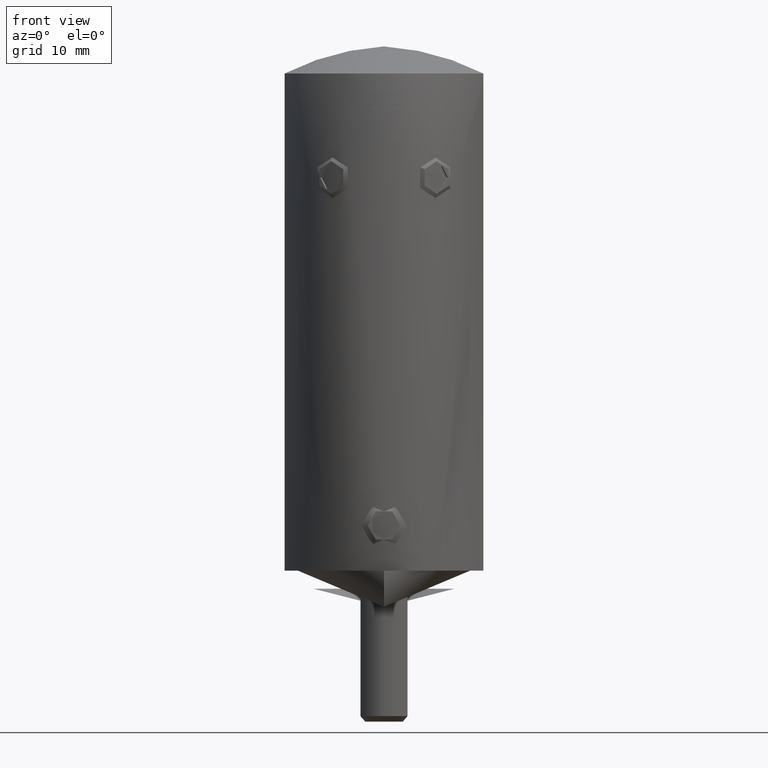
[diagram: clean part render]
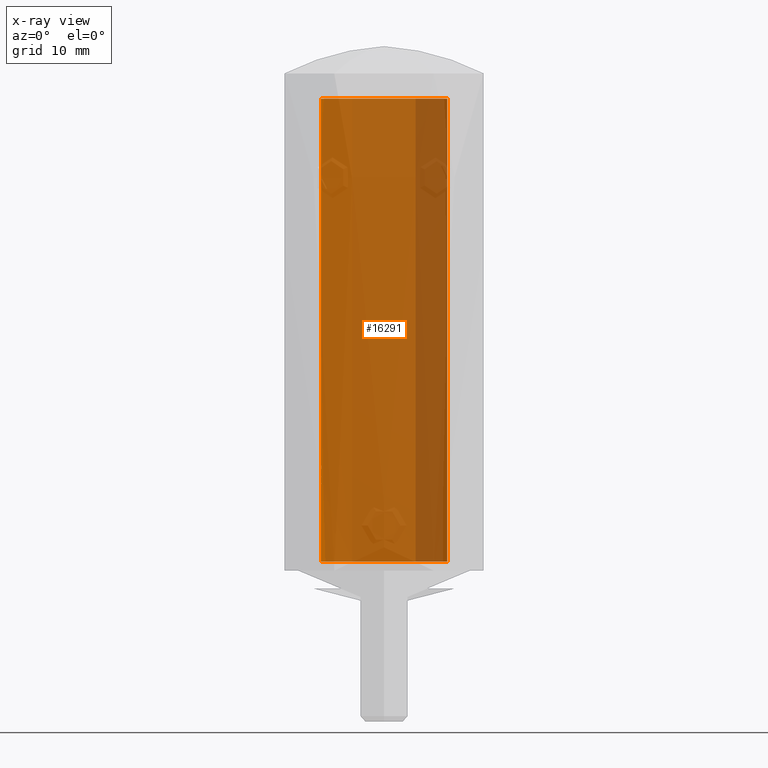
[diagram: x-ray — body ghosted, one internal face saturated and labeled with its STEP entity id]
A machine part, front view, then the same camera in x-ray: the body is ghosted and one INTERNAL B-rep face — a face not visible from any outside direction — is saturated and labeled: STEP entity #16291.
In plain terms, the highlighted cylindrical surface (partial cylindrical patch) has radius 7 mm, axis along (0, 0, 1).
Its self-contained STEP definition (entity closure, byte-faithful):
#86 = EDGE_CURVE ( 'NONE', #2688, #7362, #11579, .T. ) ;
#117 = EDGE_CURVE ( 'NONE', #8470, #6115, #10831, .T. ) ;
#182 = EDGE_CURVE ( 'NONE', #7376, #13845, #14457, .T. ) ;
#239 = AXIS2_PLACEMENT_3D ( 'NONE', #5784, #3709, #15758 ) ;
#241 = CARTESIAN_POINT ( 'NONE',  ( -6.993923164209693510, 0.2916140825320512886, 10.21983173076923457 ) ) ;
#248 = CARTESIAN_POINT ( 'NONE',  ( -6.992269128914475829, 0.3312836199741324705, 10.21871385728420023 ) ) ;
#284 = CARTESIAN_POINT ( 'NONE',  ( -6.994605575281114263, 0.2747596153846154077, 11.08481570512820902 ) ) ;
#324 = DIRECTION ( 'NONE',  ( -0.000000000000000000, -0.000000000000000000, 1.000000000000000000 ) ) ;
#360 = EDGE_CURVE ( 'NONE', #2921, #10218, #13961, .T. ) ;
#370 = CIRCLE ( 'NONE', #20636, 6.999999999999995559 ) ;
#379 = ORIENTED_EDGE ( 'NONE', *, *, #4284, .T. ) ;
#468 = CARTESIAN_POINT ( 'NONE',  ( -6.994605575281114263, 0.2747596153846154632, 10.56582532051282541 ) ) ;
#472 = CARTESIAN_POINT ( 'NONE',  ( -6.990270887320201076, 0.3707298341137504893, 8.431776057682716541 ) ) ;
#562 = CARTESIAN_POINT ( 'NONE',  ( 6.609966749525824525, 2.313107632880131881, 48.37054425271382740 ) ) ;
#566 = ORIENTED_EDGE ( 'NONE', *, *, #3780, .T. ) ;
#590 = CARTESIAN_POINT ( 'NONE',  ( -6.998563910360761753, 0.1432152236574844029, 11.04421904568840418 ) ) ;
#604 = B_SPLINE_CURVE_WITH_KNOTS ( 'NONE', 3,
 ( #21180, #4046, #16102, #18130, #6155, #3596 ),
 .UNSPECIFIED., .F., .F.,
 ( 4, 2, 4 ),
 ( 0.000000000000000000, 0.0001352648156522844405, 0.0002705296313045688810 ),
 .UNSPECIFIED. ) ;
#619 = AXIS2_PLACEMENT_3D ( 'NONE', #4058, #2101, #7446 ) ;
#644 = EDGE_CURVE ( 'NONE', #20290, #13957, #21049, .T. ) ;
#654 = CARTESIAN_POINT ( 'NONE',  ( 6.333276096579824710, 3.003985707210385936, 47.63300103334585600 ) ) ;
#808 = VERTEX_POINT ( 'NONE', #17090 ) ;
#892 = VECTOR ( 'NONE', #13893, 1000.000000000000000 ) ;
#897 = VERTEX_POINT ( 'NONE', #20576 ) ;
#961 = ORIENTED_EDGE ( 'NONE', *, *, #13887, .T. ) ;
#966 = VERTEX_POINT ( 'NONE', #15560 ) ;
#1039 = CARTESIAN_POINT ( 'NONE',  ( -6.983575710892729660, 0.4792392828525641191, 9.375200320512817598 ) ) ;
#1041 = CARTESIAN_POINT ( 'NONE',  ( -6.975185519710941584, 0.5888877354552816135, 10.90625314056816819 ) ) ;
#1082 = LINE ( 'NONE', #21160, #9695 ) ;
#1084 = CARTESIAN_POINT ( 'NONE',  ( 0.000000000000000000, 0.000000000000000000, 11.57327724358974486 ) ) ;
#1088 = B_SPLINE_CURVE_WITH_KNOTS ( 'NONE', 3,
 ( #16149, #21071, #7400, #7256, #12590, #9132, #17499, #2293 ),
 .UNSPECIFIED., .F., .F.,
 ( 4, 2, 2, 4 ),
 ( 0.000000000000000000, 0.0001335179647753670070, 0.0002002769471630503749, 0.0002670359295507337429 ),
 .UNSPECIFIED. ) ;
#1091 = CARTESIAN_POINT ( 'NONE',  ( -6.882762550482690145, 1.301561327987564409, 32.21941108549696509 ) ) ;
#1096 = CARTESIAN_POINT ( 'NONE',  ( -6.976773795614326978, 0.5697734561777609841, 9.275984636557687679 ) ) ;
#1106 = EDGE_CURVE ( 'NONE', #3520, #18708, #604, .T. ) ;
#1168 = CARTESIAN_POINT ( 'NONE',  ( -4.513954613622008338, 5.354015904551115312, 34.13626347998637556 ) ) ;
#1170 = LINE ( 'NONE', #14360, #17323 ) ;
#1185 = ORIENTED_EDGE ( 'NONE', *, *, #8744, .T. ) ;
#1201 = AXIS2_PLACEMENT_3D ( 'NONE', #11415, #2552, #4585 ) ;
#1212 = CARTESIAN_POINT ( 'NONE',  ( -6.984330604154168398, 0.4681089743589743613, 11.25781249999999822 ) ) ;
#1239 = CARTESIAN_POINT ( 'NONE',  ( -6.099067382008819926, 3.443960770532199511, 32.74202961873561435 ) ) ;
#1240 = EDGE_CURVE ( 'NONE', #12290, #14135, #11130, .T. ) ;
#1248 = CARTESIAN_POINT ( 'NONE',  ( -6.989310702890290550, 0.3866987179487179627, 11.25781249999999822 ) ) ;
#1273 = EDGE_CURVE ( 'NONE', #4027, #5399, #3821, .T. ) ;
#1280 = CARTESIAN_POINT ( 'NONE',  ( -6.999726386330049621, 0.06189685584760248188, 10.82991391746099552 ) ) ;
#1303 = CARTESIAN_POINT ( 'NONE',  ( 0.000000000000000000, 0.000000000000000000, 8.581450320512814756 ) ) ;
#1305 = VERTEX_POINT ( 'NONE', #16699 ) ;
#1308 = CARTESIAN_POINT ( 'NONE',  ( -6.768356280952174231, 1.804393380317886431, 32.29221277188669603 ) ) ;
#1315 = VERTEX_POINT ( 'NONE', #11414 ) ;
#1323 = CARTESIAN_POINT ( 'NONE',  ( -6.999999999999995559, 0.000000000000000000, 11.64451121794871824 ) ) ;
#1337 = EDGE_CURVE ( 'NONE', #20705, #15530, #18234, .T. ) ;
#1414 = CARTESIAN_POINT ( 'NONE',  ( -6.999999999999995559, 0.000000000000000000, 11.57327724358974486 ) ) ;
#1487 = B_SPLINE_CURVE_WITH_KNOTS ( 'NONE', 3,
 ( #20178, #16820, #21889, #11536, #1091, #1308, #14780, #13041, #8019, #13330, #1239, #15004, #21677, #15076, #4768, #1168, #18543, #21962, #14929, #2892, #11683, #13118, #2737, #4479, #18254, #7944, #19959, #6294, #18329, #20038, #21747, #20529, #10222, #6789, #3102, #16894, #8380, #15292, #15143, #18835, #4978, #4907, #8585, #1515, #4838, #6574, #20391, #17033, #18609, #8523 ),
 .UNSPECIFIED., .F., .F.,
 ( 4, 2, 2, 2, 2, 2, 2, 2, 2, 2, 2, 2, 2, 2, 2, 2, 2, 2, 2, 2, 2, 2, 2, 2, 4 ),
 ( 0.02514194904826530172, 0.02592805783948778225, 0.02671416663071026279, 0.02750027542193274332, 0.02828638421315522039, 0.02907249300437770093, 0.02985860179560018146, 0.03143081937804513559, 0.03221692816926761266, 0.03300303696049008972, 0.03378914575171255985, 0.03457525454293502998, 0.03614747212537997023, 0.03771968970782491742, 0.03929190729026986462, 0.04086412487271480487, 0.04243634245515975206, 0.04400856003760469232, 0.04558077762004963951, 0.04715299520249457976, 0.04793910399371706377, 0.04872521278493954777, 0.04951132157616202484, 0.04990437597177325990, 0.05029743036738450190 ),
 .UNSPECIFIED. ) ;
#1515 = CARTESIAN_POINT ( 'NONE',  ( -6.888421988611570512, 1.265809417937941550, 49.10638194101851184 ) ) ;
#1549 = CARTESIAN_POINT ( 'NONE',  ( -6.984351910703994193, 0.4677909655448718174, 9.680488782051284602 ) ) ;
#1581 = CIRCLE ( 'NONE', #6466, 6.999999999999995559 ) ;
#1606 = CARTESIAN_POINT ( 'NONE',  ( -6.998393933595229655, 0.1499411558493589647, 10.59635416666666963 ) ) ;
#1700 = CARTESIAN_POINT ( 'NONE',  ( -6.975952100803841205, 0.5801291302065447741, 9.822812119114441742 ) ) ;
#1760 = CARTESIAN_POINT ( 'NONE',  ( -6.999151191932070581, 0.1145966760719353689, 10.61627999101685127 ) ) ;
#1770 = CARTESIAN_POINT ( 'NONE',  ( -6.989828574833157226, 0.3785639965393226003, 8.582740937638192236 ) ) ;
#1783 = DIRECTION ( 'NONE',  ( 0.000000000000000000, 0.000000000000000000, 1.000000000000000000 ) ) ;
#1799 = VERTEX_POINT ( 'NONE', #5992 ) ;
#1829 = CARTESIAN_POINT ( 'NONE',  ( -6.975072415830049444, 0.5902243589743589869, 9.915179286858977648 ) ) ;
#1888 = VECTOR ( 'NONE', #22136, 1000.000000000000000 ) ;
#1909 = CARTESIAN_POINT ( 'NONE',  ( -6.975168945471279969, 0.5890836042297992181, 9.955013894102263450 ) ) ;
#1949 = EDGE_CURVE ( 'NONE', #3710, #15310, #1170, .T. ) ;
#1992 = CARTESIAN_POINT ( 'NONE',  ( -6.976193689173535439, 0.5773470099078419349, 9.091973170070165366 ) ) ;
#2042 = ORIENTED_EDGE ( 'NONE', *, *, #1337, .T. ) ;
#2046 = EDGE_CURVE ( 'NONE', #7946, #16991, #4116, .T. ) ;
#2059 = CARTESIAN_POINT ( 'NONE',  ( -6.998163288277105210, 0.1633117209089862687, 10.19460574809159503 ) ) ;
#2067 = CARTESIAN_POINT ( 'NONE',  ( -6.980087826432745501, 0.5281873663763213544, 9.024330313367935119 ) ) ;
#2092 = EDGE_CURVE ( 'NONE', #12075, #897, #3911, .T. ) ;
#2101 = DIRECTION ( 'NONE',  ( 0.000000000000000000, 0.000000000000000000, 1.000000000000000000 ) ) ;
#2139 = CARTESIAN_POINT ( 'NONE',  ( -6.986032632502590545, 0.4434813926506086523, 8.400486848746963275 ) ) ;
#2199 = CIRCLE ( 'NONE', #5200, 6.999999999999995559 ) ;
#2214 = CARTESIAN_POINT ( 'NONE',  ( -6.975168945471278192, 0.5890836042297989961, 8.174164535127903974 ) ) ;
#2224 = VERTEX_POINT ( 'NONE', #13295 ) ;
#2232 = CARTESIAN_POINT ( 'NONE',  ( 3.524040744176350604, 6.048711491397220641, 36.13504608179889743 ) ) ;
#2234 = DIRECTION ( 'NONE',  ( 0.000000000000000000, 0.000000000000000000, -1.000000000000000000 ) ) ;
#2250 = ORIENTED_EDGE ( 'NONE', *, *, #2092, .T. ) ;
#2293 = CARTESIAN_POINT ( 'NONE',  ( -6.975072415830049444, 0.5902243589743589869, 8.777820763221152234 ) ) ;
#2309 = CARTESIAN_POINT ( 'NONE',  ( 4.359741012046946196, 5.479281829763906764, 34.32338510542539467 ) ) ;
#2332 = CARTESIAN_POINT ( 'NONE',  ( -6.979037350977949750, 0.5416948144594703196, 7.961010790531606318 ) ) ;
#2338 = CARTESIAN_POINT ( 'NONE',  ( -6.999471210223984663, 0.08667378625699909134, 10.98135553034625822 ) ) ;
#2342 = ORIENTED_EDGE ( 'NONE', *, *, #13191, .F. ) ;
#2393 = CARTESIAN_POINT ( 'NONE',  ( 4.906518496979889399, 5.009203093844459609, 43.65973177399769867 ) ) ;
#2464 = CARTESIAN_POINT ( 'NONE',  ( 3.468281400383607771, 6.080486315491485882, 37.96762995942553687 ) ) ;
#2524 = EDGE_CURVE ( 'NONE', #18266, #16334, #15670, .T. ) ;
#2552 = DIRECTION ( 'NONE',  ( 0.000000000000000000, 0.000000000000000000, 1.000000000000000000 ) ) ;
#2624 = DIRECTION ( 'NONE',  ( 0.000000000000000000, 0.000000000000000000, 1.000000000000000000 ) ) ;
#2650 = VERTEX_POINT ( 'NONE', #10545 ) ;
#2661 = B_SPLINE_CURVE_WITH_KNOTS ( 'NONE', 3,
 ( #3151, #1280, #4665, #13299, #16866, #18448 ),
 .UNSPECIFIED., .F., .F.,
 ( 4, 2, 4 ),
 ( 0.000000000000000000, 0.0001283067629405731458, 0.0002566135258811462917 ),
 .UNSPECIFIED. ) ;
#2688 = VERTEX_POINT ( 'NONE', #5864 ) ;
#2698 = ORIENTED_EDGE ( 'NONE', *, *, #1240, .T. ) ;
#2710 = DIRECTION ( 'NONE',  ( 0.000000000000000000, 0.000000000000000000, 1.000000000000000000 ) ) ;
#2737 = CARTESIAN_POINT ( 'NONE',  ( -3.481655308363387213, 6.072794059604130545, 36.39164563829519494 ) ) ;
#2835 = VECTOR ( 'NONE', #15188, 1000.000000000000000 ) ;
#2838 = DIRECTION ( 'NONE',  ( -0.000000000000000000, -0.000000000000000000, 1.000000000000000000 ) ) ;
#2863 = CARTESIAN_POINT ( 'NONE',  ( -6.985511624158850630, 0.4501414763621794934, 8.990568659855766143 ) ) ;
#2892 = CARTESIAN_POINT ( 'NONE',  ( -3.743214576281215233, 5.916527297826577936, 35.38642320864083501 ) ) ;
#2921 = VERTEX_POINT ( 'NONE', #1323 ) ;
#2961 = EDGE_CURVE ( 'NONE', #17125, #12893, #3285, .T. ) ;
#2981 = DIRECTION ( 'NONE',  ( 0.000000000000000000, 0.000000000000000000, -1.000000000000000000 ) ) ;
#3075 = EDGE_CURVE ( 'NONE', #20704, #1305, #18647, .T. ) ;
#3102 = CARTESIAN_POINT ( 'NONE',  ( -5.390527042967952376, 4.473439185618388159, 45.04264640824421662 ) ) ;
#3111 = ORIENTED_EDGE ( 'NONE', *, *, #12929, .T. ) ;
#3133 = ORIENTED_EDGE ( 'NONE', *, *, #1106, .T. ) ;
#3143 = CARTESIAN_POINT ( 'NONE',  ( 0.000000000000000000, 0.000000000000000000, 7.899639423076920686 ) ) ;
#3151 = CARTESIAN_POINT ( 'NONE',  ( -6.999733706235544695, 0.06105769230769231282, 10.87318083934295210 ) ) ;
#3258 = VERTEX_POINT ( 'NONE', #12062 ) ;
#3283 = CARTESIAN_POINT ( 'NONE',  ( -6.993923164209693510, 0.2916140825320512886, 10.21983173076923457 ) ) ;
#3285 = LINE ( 'NONE', #13345, #11360 ) ;
#3321 = CARTESIAN_POINT ( 'NONE',  ( -6.975711601572103682, 0.5828406137837843781, 7.303705376855781140 ) ) ;
#3419 = CARTESIAN_POINT ( 'NONE',  ( -6.975685441276668008, 0.5831352409177302798, 8.713319924747269241 ) ) ;
#3435 = CARTESIAN_POINT ( 'NONE',  ( -6.997602991302841247, 0.1831730769230769384, 10.65963792067308269 ) ) ;
#3452 = CARTESIAN_POINT ( 'NONE',  ( -6.975711601572111675, 0.5828406137837871537, 6.632070761471171139 ) ) ;
#3472 = CARTESIAN_POINT ( 'NONE',  ( -6.996470658696542166, 0.2242866322337765950, 11.15156467815497443 ) ) ;
#3514 = LINE ( 'NONE', #16719, #9192 ) ;
#3518 = CARTESIAN_POINT ( 'NONE',  ( -6.990523480903468645, 0.3657506385901199142, 6.486430212463965006 ) ) ;
#3520 = VERTEX_POINT ( 'NONE', #4621 ) ;
#3543 = CARTESIAN_POINT ( 'NONE',  ( -6.999999999999992895, 4.748279719784501314E-12, 10.94903033462087016 ) ) ;
#3560 = CARTESIAN_POINT ( 'NONE',  ( -6.975072415830049444, 0.5902243589743589869, 9.915179286858977648 ) ) ;
#3596 = CARTESIAN_POINT ( 'NONE',  ( -6.983793213084888762, 0.4760591947115384581, 10.62895007011218240 ) ) ;
#3615 = B_SPLINE_CURVE_WITH_KNOTS ( 'NONE', 3,
 ( #17219, #248, #17368, #12132, #15615, #13791, #19082, #10332, #1909, #3560 ),
 .UNSPECIFIED., .F., .F.,
 ( 4, 2, 2, 2, 4 ),
 ( 0.000000000000000000, 0.0001179767162651419482, 0.0002359534325302838965, 0.0003539301487954258718, 0.0004719068650605677930 ),
 .UNSPECIFIED. ) ;
#3631 = CARTESIAN_POINT ( 'NONE',  ( -6.975072415830049444, 0.5902243589743590979, 7.373652844551283003 ) ) ;
#3635 = CARTESIAN_POINT ( 'NONE',  ( -6.984330604154168398, 0.4681089743589743613, 58.00000000000000000 ) ) ;
#3709 = DIRECTION ( 'NONE',  ( -0.000000000000000000, -0.000000000000000000, -1.000000000000000000 ) ) ;
#3710 = VERTEX_POINT ( 'NONE', #16264 ) ;
#3717 = CARTESIAN_POINT ( 'NONE',  ( -6.983793213084888762, 0.4760591947115384581, 10.62895007011218240 ) ) ;
#3737 = VERTEX_POINT ( 'NONE', #21566 ) ;
#3780 = EDGE_CURVE ( 'NONE', #18660, #12757, #370, .T. ) ;
#3804 = VECTOR ( 'NONE', #9639, 1000.000000000000000 ) ;
#3809 = VECTOR ( 'NONE', #14057, 1000.000000000000000 ) ;
#3821 = LINE ( 'NONE', #16853, #18672 ) ;
#3842 = CIRCLE ( 'NONE', #5333, 6.999999999999992006 ) ;
#3848 = CARTESIAN_POINT ( 'NONE',  ( -7.000000000000000888, 6.839862411604283028E-12, 9.998084021171711910 ) ) ;
#3887 = VERTEX_POINT ( 'NONE', #7509 ) ;
#3896 = DIRECTION ( 'NONE',  ( -0.000000000000000000, -0.000000000000000000, 1.000000000000000000 ) ) ;
#3909 = CARTESIAN_POINT ( 'NONE',  ( -6.994605575281114263, 0.2747596153846154077, 58.00000000000000000 ) ) ;
#3911 = B_SPLINE_CURVE_WITH_KNOTS ( 'NONE', 3,
 ( #7530, #21423, #11132, #4216, #21271, #4289 ),
 .UNSPECIFIED., .F., .F.,
 ( 4, 2, 4 ),
 ( 0.000000000000000000, 0.0001048519133931838853, 0.0002097038267863677707 ),
 .UNSPECIFIED. ) ;
#3955 = CARTESIAN_POINT ( 'NONE',  ( 5.842303228411394933, 3.863689088483643452, 32.92910345110134784 ) ) ;
#3957 = CARTESIAN_POINT ( 'NONE',  ( -6.998163288277096328, 0.1633117209090566568, 8.413756389117262202 ) ) ;
#4009 = CARTESIAN_POINT ( 'NONE',  ( -6.952498616693251421, 0.8141025641025640969, 9.680488782051284602 ) ) ;
#4027 = VERTEX_POINT ( 'NONE', #13138 ) ;
#4046 = CARTESIAN_POINT ( 'NONE',  ( -6.975171153017883263, 0.5890575161885401867, 10.81733116289036190 ) ) ;
#4058 = CARTESIAN_POINT ( 'NONE',  ( 0.000000000000000000, 0.000000000000000000, 10.36229967948718667 ) ) ;
#4116 = CIRCLE ( 'NONE', #14739, 6.999999999999995559 ) ;
#4121 = CARTESIAN_POINT ( 'NONE',  ( 4.016412757199954164, 5.735733345686588436, 40.75006963532489124 ) ) ;
#4142 = EDGE_CURVE ( 'NONE', #897, #3520, #12869, .T. ) ;
#4146 = CARTESIAN_POINT ( 'NONE',  ( -6.999727933340092356, 0.06171950459328575528, 10.90135257210054753 ) ) ;
#4196 = CARTESIAN_POINT ( 'NONE',  ( 3.955337484900653955, 5.776827208771210032, 34.93539008049921790 ) ) ;
#4216 = CARTESIAN_POINT ( 'NONE',  ( -6.987242208407590027, 0.4236922933785397527, 11.12817610495460841 ) ) ;
#4251 = EDGE_CURVE ( 'NONE', #15530, #8849, #18175, .T. ) ;
#4280 = CARTESIAN_POINT ( 'NONE',  ( 0.000000000000000000, 0.000000000000000000, 9.609254807692305889 ) ) ;
#4284 = EDGE_CURVE ( 'NONE', #2224, #7946, #13290, .T. ) ;
#4289 = CARTESIAN_POINT ( 'NONE',  ( -6.983378714962022116, 0.4821013621794871806, 11.08926782852564408 ) ) ;
#4388 = AXIS2_PLACEMENT_3D ( 'NONE', #20131, #2981, #16763 ) ;
#4458 = CARTESIAN_POINT ( 'NONE',  ( 0.000000000000000000, 0.000000000000000000, 7.828405448717948190 ) ) ;
#4472 = DIRECTION ( 'NONE',  ( 0.000000000000000000, 0.000000000000000000, 1.000000000000000000 ) ) ;
#4479 = CARTESIAN_POINT ( 'NONE',  ( -3.410155007145835970, 6.113415439319590305, 37.17693947337541971 ) ) ;
#4484 = CARTESIAN_POINT ( 'NONE',  ( -6.975137246310718631, 0.5894582142183795170, 9.195747917949018913 ) ) ;
#4519 = CARTESIAN_POINT ( 'NONE',  ( -6.978367668599761764, 0.5500020157131935150, 9.310538615506409599 ) ) ;
#4568 = ORIENTED_EDGE ( 'NONE', *, *, #12818, .T. ) ;
#4580 = EDGE_CURVE ( 'NONE', #808, #12075, #12723, .T. ) ;
#4585 = DIRECTION ( 'NONE',  ( 1.000000000000000000, 0.000000000000000000, 0.000000000000000000 ) ) ;
#4621 = CARTESIAN_POINT ( 'NONE',  ( -6.975072415830049444, 0.5902243589743589869, 10.86252754407051668 ) ) ;
#4623 = ORIENTED_EDGE ( 'NONE', *, *, #7702, .F. ) ;
#4665 = CARTESIAN_POINT ( 'NONE',  ( -6.999664716065423065, 0.07154789997686493430, 10.78696085337594468 ) ) ;
#4698 = EDGE_CURVE ( 'NONE', #15435, #5859, #8203, .T. ) ;
#4706 = DIRECTION ( 'NONE',  ( -1.000000000000000000, 0.000000000000000000, 0.000000000000000000 ) ) ;
#4768 = CARTESIAN_POINT ( 'NONE',  ( -4.968324091894144701, 4.947812239566822257, 33.64148367586835064 ) ) ;
#4838 = CARTESIAN_POINT ( 'NONE',  ( -6.928691501776663486, 1.027784795415317198, 49.21221570769369436 ) ) ;
#4907 = CARTESIAN_POINT ( 'NONE',  ( -6.734357332197993706, 1.920954020181361965, 48.70010116469608619 ) ) ;
#4978 = CARTESIAN_POINT ( 'NONE',  ( -6.611031297507477866, 2.309956321828704251, 48.37336816417462160 ) ) ;
#5016 = ORIENTED_EDGE ( 'NONE', *, *, #21451, .T. ) ;
#5019 = CARTESIAN_POINT ( 'NONE',  ( -6.999999999999995559, 8.572527588246514583E-16, 32.14600281952410654 ) ) ;
#5063 = ORIENTED_EDGE ( 'NONE', *, *, #360, .F. ) ;
#5073 = ORIENTED_EDGE ( 'NONE', *, *, #18379, .T. ) ;
#5159 = CARTESIAN_POINT ( 'NONE',  ( -6.975192037068975281, 0.5888107155160743345, 9.133393318208646861 ) ) ;
#5164 = DIRECTION ( 'NONE',  ( -0.000000000000000000, -0.000000000000000000, 1.000000000000000000 ) ) ;
#5200 = AXIS2_PLACEMENT_3D ( 'NONE', #18391, #8084, #20104 ) ;
#5221 = DIRECTION ( 'NONE',  ( 0.000000000000000000, 0.000000000000000000, -1.000000000000000000 ) ) ;
#5224 = ORIENTED_EDGE ( 'NONE', *, *, #14080, .T. ) ;
#5249 = CARTESIAN_POINT ( 'NONE',  ( -6.997892940281262852, 0.1720964063075273165, 10.63854454792193494 ) ) ;
#5296 = CARTESIAN_POINT ( 'NONE',  ( -6.999999999999990230, 0.007907160690676281675, 10.97944520244717026 ) ) ;
#5311 = ORIENTED_EDGE ( 'NONE', *, *, #17997, .T. ) ;
#5333 = AXIS2_PLACEMENT_3D ( 'NONE', #7801, #5924, #9375 ) ;
#5360 = CARTESIAN_POINT ( 'NONE',  ( -6.952498616693251421, 0.8141025641025640969, 10.36229967948718311 ) ) ;
#5365 = ORIENTED_EDGE ( 'NONE', *, *, #21280, .T. ) ;
#5399 = VERTEX_POINT ( 'NONE', #12951 ) ;
#5463 = LINE ( 'NONE', #17487, #3809 ) ;
#5474 = CARTESIAN_POINT ( 'NONE',  ( 0.000000000000000000, 0.000000000000000000, 9.375200320512817598 ) ) ;
#5478 = CARTESIAN_POINT ( 'NONE',  ( -6.996443253277770502, 0.2252596973263232827, 8.434222955792494147 ) ) ;
#5488 = VECTOR ( 'NONE', #20855, 1000.000000000000000 ) ;
#5516 = ORIENTED_EDGE ( 'NONE', *, *, #13476, .T. ) ;
#5522 = B_SPLINE_CURVE_WITH_KNOTS ( 'NONE', 3,
 ( #10300, #20536, #3321, #8589, #22106, #10227, #20676, #20461, #6654, #11976 ),
 .UNSPECIFIED., .F., .F.,
 ( 4, 2, 2, 2, 4 ),
 ( 8.741117365843378158E-19, 0.0001037594472690349265, 0.0002075188945380689856, 0.0003112783418071030312, 0.0004150377890761371038 ),
 .UNSPECIFIED. ) ;
#5556 = CARTESIAN_POINT ( 'NONE',  ( -6.952498616693251421, 0.8141025641025640969, 58.00000000000000000 ) ) ;
#5580 = CARTESIAN_POINT ( 'NONE',  ( -6.996612248599137551, 0.2193118914996022295, 11.07976250972427934 ) ) ;
#5651 = VERTEX_POINT ( 'NONE', #6412 ) ;
#5690 = EDGE_CURVE ( 'NONE', #21960, #18876, #12702, .T. ) ;
#5695 = CIRCLE ( 'NONE', #21631, 6.999999999999995559 ) ;
#5709 = CARTESIAN_POINT ( 'NONE',  ( 5.419414377456977405, 4.436788361590667584, 33.26041346276918631 ) ) ;
#5727 = CARTESIAN_POINT ( 'NONE',  ( -6.993729378862254542, 0.2962252103365384248, 6.485136217948717530 ) ) ;
#5735 = CARTESIAN_POINT ( 'NONE',  ( -6.975072415830049444, 0.5902243589743589869, 8.134329927884616396 ) ) ;
#5784 = CARTESIAN_POINT ( 'NONE',  ( 0.000000000000000000, 0.000000000000000000, 1.000000000000021760 ) ) ;
#5859 = VERTEX_POINT ( 'NONE', #14113 ) ;
#5864 = CARTESIAN_POINT ( 'NONE',  ( -6.975926048092667031, 0.5800480769230769162, 7.665584935897438612 ) ) ;
#5906 = CARTESIAN_POINT ( 'NONE',  ( 0.000000000000000000, 0.000000000000000000, 7.665584935897438612 ) ) ;
#5924 = DIRECTION ( 'NONE',  ( -0.000000000000000000, -0.000000000000000000, 1.000000000000000000 ) ) ;
#5934 = CARTESIAN_POINT ( 'NONE',  ( 5.704573600330702376, 4.063617009333411190, 33.03295163559154446 ) ) ;
#5949 = AXIS2_PLACEMENT_3D ( 'NONE', #9520, #19601, #21523 ) ;
#5992 = CARTESIAN_POINT ( 'NONE',  ( 6.999999999999995559, 3.009265538105056020E-31, 32.14600281952410654 ) ) ;
#6021 = CARTESIAN_POINT ( 'NONE',  ( 6.696491117382623592, 2.054943547856492359, 32.33831612405845135 ) ) ;
#6045 = CARTESIAN_POINT ( 'NONE',  ( -6.975926048092667031, 0.5800480769230769162, 9.375200320512817598 ) ) ;
#6076 = ORIENTED_EDGE ( 'NONE', *, *, #17860, .F. ) ;
#6115 = VERTEX_POINT ( 'NONE', #7162 ) ;
#6130 = DIRECTION ( 'NONE',  ( 0.000000000000000000, 0.000000000000000000, 1.000000000000000000 ) ) ;
#6135 = EDGE_CURVE ( 'NONE', #10706, #7915, #22095, .T. ) ;
#6155 = CARTESIAN_POINT ( 'NONE',  ( -6.981395117864715338, 0.5112392759052786229, 10.65749523744786131 ) ) ;
#6210 = ORIENTED_EDGE ( 'NONE', *, *, #15347, .T. ) ;
#6217 = ORIENTED_EDGE ( 'NONE', *, *, #16139, .T. ) ;
#6261 = CARTESIAN_POINT ( 'NONE',  ( -6.983836538944188099, 0.4754231770833333148, 7.594350961538459899 ) ) ;
#6294 = CARTESIAN_POINT ( 'NONE',  ( -3.886069907507756049, 5.823802663510247335, 40.25645792035700765 ) ) ;
#6299 = EDGE_CURVE ( 'NONE', #14412, #16481, #21803, .T. ) ;
#6304 = ORIENTED_EDGE ( 'NONE', *, *, #14024, .T. ) ;
#6335 = EDGE_CURVE ( 'NONE', #12737, #20704, #10490, .T. ) ;
#6412 = CARTESIAN_POINT ( 'NONE',  ( -6.999999999999995559, 0.000000000000000000, 7.156770833333332860 ) ) ;
#6433 = CARTESIAN_POINT ( 'NONE',  ( -6.975072415830049444, 0.5902243589743590979, 6.702018229166666785 ) ) ;
#6464 = CARTESIAN_POINT ( 'NONE',  ( 6.999999999999995559, 0.000000000000000000, 58.00000000000000000 ) ) ;
#6466 = AXIS2_PLACEMENT_3D ( 'NONE', #3143, #13288, #15035 ) ;
#6475 = CARTESIAN_POINT ( 'NONE',  ( -6.985770201188607587, 0.4470567591857310119, 10.60770308308823218 ) ) ;
#6574 = CARTESIAN_POINT ( 'NONE',  ( -6.970579123422646184, 0.6533020451706014198, 49.32221655430805640 ) ) ;
#6612 = CARTESIAN_POINT ( 'NONE',  ( -6.975926048092667031, 0.5800480769230769162, 58.00000000000000000 ) ) ;
#6654 = CARTESIAN_POINT ( 'NONE',  ( -6.992255263739550308, 0.3310283326966319550, 7.156873149467364748 ) ) ;
#6693 = ORIENTED_EDGE ( 'NONE', *, *, #2961, .T. ) ;
#6724 = CARTESIAN_POINT ( 'NONE',  ( -6.999999999999995559, 8.572527594031146799E-16, 49.39940828047589605 ) ) ;
#6757 = CARTESIAN_POINT ( 'NONE',  ( -6.975072415830049444, 0.5902243589743589869, 8.777820763221152234 ) ) ;
#6759 = CARTESIAN_POINT ( 'NONE',  ( -6.979367170375266660, 0.5374862058803332454, 9.742090909212397065 ) ) ;
#6789 = CARTESIAN_POINT ( 'NONE',  ( -5.229115245903959597, 4.659428970267521564, 44.58310987281885929 ) ) ;
#6862 = CARTESIAN_POINT ( 'NONE',  ( -6.980184269215647497, 0.5271453394497218614, 6.543605900125207597 ) ) ;
#6874 = CARTESIAN_POINT ( 'NONE',  ( -6.999999999999995559, -6.262532139824259175E-14, 10.77827216039748492 ) ) ;
#6890 = CARTESIAN_POINT ( 'NONE',  ( -6.999987181472780762, 0.02936360170756483270, 10.70195729518574090 ) ) ;
#6894 = ORIENTED_EDGE ( 'NONE', *, *, #18423, .T. ) ;
#6944 = CARTESIAN_POINT ( 'NONE',  ( -6.999999999999995559, 8.572527594031467273E-16, 58.00000000000000000 ) ) ;
#7027 = CARTESIAN_POINT ( 'NONE',  ( -6.998140889070013415, 0.1641044427392859828, 11.13228830248517198 ) ) ;
#7089 = LINE ( 'NONE', #17158, #8441 ) ;
#7100 = LINE ( 'NONE', #5556, #14932 ) ;
#7142 = ORIENTED_EDGE ( 'NONE', *, *, #2524, .T. ) ;
#7162 = CARTESIAN_POINT ( 'NONE',  ( -6.992945226585870699, 0.3141927083333333481, 8.581450320512818308 ) ) ;
#7188 = CARTESIAN_POINT ( 'NONE',  ( -6.975926048092667031, 0.5800480769230769162, 6.922716346153845457 ) ) ;
#7256 = CARTESIAN_POINT ( 'NONE',  ( -6.977336603706271845, 0.5629660452798683767, 8.885337017328463816 ) ) ;
#7291 = ORIENTED_EDGE ( 'NONE', *, *, #1273, .F. ) ;
#7326 = CARTESIAN_POINT ( 'NONE',  ( -6.978068893818808682, 0.5538693984491523947, 8.286707862624549392 ) ) ;
#7362 = VERTEX_POINT ( 'NONE', #17907 ) ;
#7376 = VERTEX_POINT ( 'NONE', #16318 ) ;
#7400 = CARTESIAN_POINT ( 'NONE',  ( -6.980291260872066417, 0.5255105247498670362, 8.940580860674316455 ) ) ;
#7421 = CARTESIAN_POINT ( 'NONE',  ( 5.709968510572454470, 4.057751013838751142, 45.93707633461480100 ) ) ;
#7446 = DIRECTION ( 'NONE',  ( 1.000000000000000000, 0.000000000000000000, 0.000000000000000000 ) ) ;
#7449 = CARTESIAN_POINT ( 'NONE',  ( -6.983041713432490027, 0.4870208062510941738, 9.369540619007203475 ) ) ;
#7509 = CARTESIAN_POINT ( 'NONE',  ( -6.984020024671357518, 0.4727201021634615530, 7.899639423076922462 ) ) ;
#7530 = CARTESIAN_POINT ( 'NONE',  ( -6.994055034876375920, 0.2884339943910256276, 11.15604967948718240 ) ) ;
#7570 = DIRECTION ( 'NONE',  ( 0.000000000000000000, 0.000000000000000000, -1.000000000000000000 ) ) ;
#7608 = CARTESIAN_POINT ( 'NONE',  ( -6.999733706235544695, 0.06105769230769231282, 10.87318083934295210 ) ) ;
#7662 = CARTESIAN_POINT ( 'NONE',  ( 3.654514126624922365, 5.970787248853764773, 35.63201270983529412 ) ) ;
#7702 = EDGE_CURVE ( 'NONE', #11151, #8879, #3514, .T. ) ;
#7740 = CARTESIAN_POINT ( 'NONE',  ( 4.968555832157322882, 4.935859069622509310, 33.65888611414152365 ) ) ;
#7799 = CARTESIAN_POINT ( 'NONE',  ( -6.975689736892555892, 0.5828830882876741004, 9.236500366633077164 ) ) ;
#7801 = CARTESIAN_POINT ( 'NONE',  ( 0.000000000000000000, 0.000000000000000000, 52.20360331117452546 ) ) ;
#7870 = CARTESIAN_POINT ( 'NONE',  ( 0.000000000000000000, 0.000000000000000000, 7.156770833333332860 ) ) ;
#7881 = LINE ( 'NONE', #11278, #3804 ) ;
#7915 = VERTEX_POINT ( 'NONE', #13732 ) ;
#7944 = CARTESIAN_POINT ( 'NONE',  ( -3.560944021736228482, 6.027010091504672928, 38.74210623119559216 ) ) ;
#7946 = VERTEX_POINT ( 'NONE', #1212 ) ;
#7968 = VERTEX_POINT ( 'NONE', #16783 ) ;
#7977 = CARTESIAN_POINT ( 'NONE',  ( 0.000000000000000000, 0.000000000000000000, 9.446434294871790982 ) ) ;
#7986 = ORIENTED_EDGE ( 'NONE', *, *, #12655, .T. ) ;
#7988 = CARTESIAN_POINT ( 'NONE',  ( -6.980354219200949117, 0.5240753519136597260, 9.338852402072911119 ) ) ;
#7993 = CARTESIAN_POINT ( 'NONE',  ( -6.979136293074542863, 0.5404259276506225840, 7.536425859719730447 ) ) ;
#8001 = DIRECTION ( 'NONE',  ( 1.000000000000000000, 0.000000000000000000, 0.000000000000000000 ) ) ;
#8019 = CARTESIAN_POINT ( 'NONE',  ( -6.431689441040063571, 2.774188546640687481, 32.51265289282641646 ) ) ;
#8050 = ORIENTED_EDGE ( 'NONE', *, *, #15087, .T. ) ;
#8051 = DIRECTION ( 'NONE',  ( 0.000000000000000000, 0.000000000000000000, -1.000000000000000000 ) ) ;
#8064 = CARTESIAN_POINT ( 'NONE',  ( -6.983836538944188099, 0.4754231770833333148, 7.594350961538459899 ) ) ;
#8075 = DIRECTION ( 'NONE',  ( 0.000000000000000000, 0.000000000000000000, -1.000000000000000000 ) ) ;
#8084 = DIRECTION ( 'NONE',  ( 0.000000000000000000, 0.000000000000000000, 1.000000000000000000 ) ) ;
#8098 = ORIENTED_EDGE ( 'NONE', *, *, #3075, .T. ) ;
#8109 = CARTESIAN_POINT ( 'NONE',  ( -6.999999999999995559, 0.000000000000000000, 9.446434294871790982 ) ) ;
#8111 = CARTESIAN_POINT ( 'NONE',  ( -6.999999999999995559, 0.000000000000000000, 7.828405448717948190 ) ) ;
#8195 = CARTESIAN_POINT ( 'NONE',  ( -6.983378714962022116, 0.4821013621794871806, 11.08926782852564408 ) ) ;
#8203 = LINE ( 'NONE', #12954, #21614 ) ;
#8333 = ORIENTED_EDGE ( 'NONE', *, *, #16846, .T. ) ;
#8380 = CARTESIAN_POINT ( 'NONE',  ( -5.871669589630322150, 3.823312732358453037, 46.38206079502113965 ) ) ;
#8439 = CARTESIAN_POINT ( 'NONE',  ( -6.975181206930625599, 0.5889387024385190905, 6.667150536035553188 ) ) ;
#8441 = VECTOR ( 'NONE', #5164, 1000.000000000000000 ) ;
#8470 = VERTEX_POINT ( 'NONE', #16758 ) ;
#8523 = CARTESIAN_POINT ( 'NONE',  ( -6.999999999999995559, 8.572527594031146799E-16, 49.39940828047589605 ) ) ;
#8532 = ORIENTED_EDGE ( 'NONE', *, *, #12345, .T. ) ;
#8560 = CARTESIAN_POINT ( 'NONE',  ( -6.998156588207514517, 0.1610190784660980867, 10.61744992361146345 ) ) ;
#8585 = CARTESIAN_POINT ( 'NONE',  ( -6.790759178291197351, 1.714123903975905749, 48.84902007299145055 ) ) ;
#8589 = CARTESIAN_POINT ( 'NONE',  ( -6.978300797048317072, 0.5509750586898722879, 7.242220700954463908 ) ) ;
#8608 = EDGE_CURVE ( 'NONE', #13202, #18876, #10807, .T. ) ;
#8657 = DIRECTION ( 'NONE',  ( 0.000000000000000000, 0.000000000000000000, 1.000000000000000000 ) ) ;
#8719 = EDGE_CURVE ( 'NONE', #3258, #15310, #14910, .T. ) ;
#8722 = CARTESIAN_POINT ( 'NONE',  ( -6.975072415830049444, 0.5902243589743590979, 6.702018229166666785 ) ) ;
#8744 = EDGE_CURVE ( 'NONE', #21115, #17125, #13502, .T. ) ;
#8849 = VERTEX_POINT ( 'NONE', #4009 ) ;
#8873 = ORIENTED_EDGE ( 'NONE', *, *, #16201, .T. ) ;
#8879 = VERTEX_POINT ( 'NONE', #19600 ) ;
#8918 = CARTESIAN_POINT ( 'NONE',  ( -6.954851611465190153, 0.7937499999999999556, 11.25781249999999822 ) ) ;
#8966 = B_SPLINE_CURVE_WITH_KNOTS ( 'NONE', 3,
 ( #14443, #7449, #15871, #16569, #11055, #9643, #7988, #19866, #4519, #20008 ),
 .UNSPECIFIED., .F., .F.,
 ( 4, 3, 3, 4 ),
 ( 0.000000000000000000, 2.891064384268525074E-05, 5.786952075068932616E-05, 0.0001156858324613495022 ),
 .UNSPECIFIED. ) ;
#8972 = CARTESIAN_POINT ( 'NONE',  ( -6.977499106223290504, 0.5608085436698718729, 9.294744090544870829 ) ) ;
#9061 = CARTESIAN_POINT ( 'NONE',  ( -6.992269128914475829, 0.3312836199741276966, 8.437864498309846084 ) ) ;
#9117 = ORIENTED_EDGE ( 'NONE', *, *, #10047, .T. ) ;
#9132 = CARTESIAN_POINT ( 'NONE',  ( -6.975355233235645436, 0.5869125839159110569, 8.822634284688531281 ) ) ;
#9142 = ORIENTED_EDGE ( 'NONE', *, *, #11496, .T. ) ;
#9146 = CARTESIAN_POINT ( 'NONE',  ( -6.975926048092667031, 0.5800480769230769162, 9.446434294871790982 ) ) ;
#9155 = CARTESIAN_POINT ( 'NONE',  ( 6.940849073122643986, 1.045535854523098163, 32.18245260687937304 ) ) ;
#9162 = AXIS2_PLACEMENT_3D ( 'NONE', #11992, #5221, #22268 ) ;
#9192 = VECTOR ( 'NONE', #22010, 1000.000000000000000 ) ;
#9236 = CARTESIAN_POINT ( 'NONE',  ( 3.433952408712100279, 6.099893553232220711, 36.91773717461482818 ) ) ;
#9272 = LINE ( 'NONE', #17382, #21894 ) ;
#9281 = VERTEX_POINT ( 'NONE', #11832 ) ;
#9311 = EDGE_CURVE ( 'NONE', #6115, #5399, #11628, .T. ) ;
#9375 = DIRECTION ( 'NONE',  ( 1.000000000000000000, 0.000000000000000000, 0.000000000000000000 ) ) ;
#9388 = CARTESIAN_POINT ( 'NONE',  ( 6.542576593068736734, 2.495650333077025884, 48.19147596412059897 ) ) ;
#9470 = CARTESIAN_POINT ( 'NONE',  ( 6.768637444681858462, 1.803518758480446404, 32.29203161796363730 ) ) ;
#9520 = CARTESIAN_POINT ( 'NONE',  ( 0.000000000000000000, 0.000000000000000000, 7.594350961538459899 ) ) ;
#9562 = ORIENTED_EDGE ( 'NONE', *, *, #22284, .T. ) ;
#9607 = CARTESIAN_POINT ( 'NONE',  ( -6.976463014850416755, 0.5735536613291412067, 9.266308781934336380 ) ) ;
#9626 = CARTESIAN_POINT ( 'NONE',  ( -6.981072906103180209, 0.5155016754099150944, 11.06130167759319960 ) ) ;
#9629 = ORIENTED_EDGE ( 'NONE', *, *, #18821, .T. ) ;
#9638 = ORIENTED_EDGE ( 'NONE', *, *, #15921, .F. ) ;
#9639 = DIRECTION ( 'NONE',  ( -0.000000000000000000, -0.000000000000000000, 1.000000000000000000 ) ) ;
#9643 = CARTESIAN_POINT ( 'NONE',  ( -6.980876353886601215, 0.5171208461490340857, 9.345516922216267730 ) ) ;
#9664 = CARTESIAN_POINT ( 'NONE',  ( -6.975191266297922077, 0.5888198242284305994, 6.745496474921472974 ) ) ;
#9677 = ORIENTED_EDGE ( 'NONE', *, *, #1949, .F. ) ;
#9695 = VECTOR ( 'NONE', #324, 1000.000000000000000 ) ;
#9726 = ORIENTED_EDGE ( 'NONE', *, *, #21394, .T. ) ;
#9734 = B_SPLINE_CURVE_WITH_KNOTS ( 'NONE', 3,
 ( #21792, #6475, #20219, #18511, #13437, #16936 ),
 .UNSPECIFIED., .F., .F.,
 ( 4, 2, 4 ),
 ( 8.131516293641283255E-19, 0.0001077436105361412983, 0.0002154872210722817835 ),
 .UNSPECIFIED. ) ;
#9763 = LINE ( 'NONE', #11015, #20496 ) ;
#9782 = CARTESIAN_POINT ( 'NONE',  ( -6.975072415830049444, 0.5902243589743590979, 7.373652844551283003 ) ) ;
#9798 = AXIS2_PLACEMENT_3D ( 'NONE', #20257, #11768, #4706 ) ;
#9806 = DIRECTION ( 'NONE',  ( 1.000000000000000000, 0.000000000000000000, 0.000000000000000000 ) ) ;
#9953 = CARTESIAN_POINT ( 'NONE',  ( -6.952498616693251421, 0.8141025641025640969, 10.43353365384616005 ) ) ;
#10028 = EDGE_CURVE ( 'NONE', #16481, #3887, #15494, .T. ) ;
#10047 = EDGE_CURVE ( 'NONE', #10078, #19013, #7881, .T. ) ;
#10053 = ORIENTED_EDGE ( 'NONE', *, *, #15263, .T. ) ;
#10078 = VERTEX_POINT ( 'NONE', #12633 ) ;
#10218 = VERTEX_POINT ( 'NONE', #5019 ) ;
#10222 = CARTESIAN_POINT ( 'NONE',  ( -4.908816406039131053, 4.995742795192179564, 43.64704833967629583 ) ) ;
#10227 = CARTESIAN_POINT ( 'NONE',  ( -6.984343760806195789, 0.4688249907980786002, 7.177814552741410559 ) ) ;
#10236 = CIRCLE ( 'NONE', #10381, 6.999999999999995559 ) ;
#10250 = CARTESIAN_POINT ( 'NONE',  ( -6.983998366705323591, 0.4738696323051959647, 8.599986412782227418 ) ) ;
#10300 = CARTESIAN_POINT ( 'NONE',  ( -6.975072415830049444, 0.5902243589743590979, 7.373652844551283003 ) ) ;
#10312 = CARTESIAN_POINT ( 'NONE',  ( -6.999777645199419140, 0.05883047230123461535, 11.06035176852797086 ) ) ;
#10332 = CARTESIAN_POINT ( 'NONE',  ( -6.975677100225961880, 0.5832201906683384118, 9.994921781603547828 ) ) ;
#10361 = CARTESIAN_POINT ( 'NONE',  ( -6.986575440937947690, 0.4346903205438484852, 6.496520614923300130 ) ) ;
#10380 = CARTESIAN_POINT ( 'NONE',  ( -6.999991798199301840, 0.02151585106986232329, 11.00910457826366695 ) ) ;
#10381 = AXIS2_PLACEMENT_3D ( 'NONE', #20029, #8075, #20095 ) ;
#10394 = CARTESIAN_POINT ( 'NONE',  ( -6.975926048092667031, 0.5800480769230769162, 58.00000000000000000 ) ) ;
#10396 = EDGE_CURVE ( 'NONE', #12757, #966, #7089, .T. ) ;
#10490 = LINE ( 'NONE', #18615, #18612 ) ;
#10500 = CARTESIAN_POINT ( 'NONE',  ( -6.984351910703994193, 0.4677909655448718174, 9.680488782051284602 ) ) ;
#10536 = CARTESIAN_POINT ( 'NONE',  ( -6.982978908578845179, 0.4894453731455026824, 9.004723440354572617 ) ) ;
#10537 = ORIENTED_EDGE ( 'NONE', *, *, #10028, .T. ) ;
#10545 = CARTESIAN_POINT ( 'NONE',  ( -6.989310702890290550, 0.3866987179487179627, 11.57327724358974130 ) ) ;
#10595 = CARTESIAN_POINT ( 'NONE',  ( -6.998746131322579167, 0.1350120444620937221, 11.11806485040436776 ) ) ;
#10609 = CARTESIAN_POINT ( 'NONE',  ( -6.983852485567710211, 0.4759911326303039036, 8.377042280810726993 ) ) ;
#10696 = CARTESIAN_POINT ( 'NONE',  ( -6.985511624158850630, 0.4501414763621794934, 8.990568659855766143 ) ) ;
#10706 = VERTEX_POINT ( 'NONE', #468 ) ;
#10797 = ORIENTED_EDGE ( 'NONE', *, *, #644, .T. ) ;
#10807 = LINE ( 'NONE', #21839, #19450 ) ;
#10831 = B_SPLINE_CURVE_WITH_KNOTS ( 'NONE', 3,
 ( #6757, #12129, #3419, #20563, #18792, #10250, #13710, #1770, #13788, #15467 ),
 .UNSPECIFIED., .F., .F.,
 ( 4, 2, 2, 2, 4 ),
 ( 0.000000000000000000, 9.575658788308755696E-05, 0.0001915131757661751139, 0.0002872697636492629013, 0.0003830263515323507157 ),
 .UNSPECIFIED. ) ;
#10835 = VERTEX_POINT ( 'NONE', #8972 ) ;
#10951 = CARTESIAN_POINT ( 'NONE',  ( 5.870376529966799595, 3.825300994748024319, 46.37851730944385764 ) ) ;
#11004 = ORIENTED_EDGE ( 'NONE', *, *, #17960, .T. ) ;
#11015 = CARTESIAN_POINT ( 'NONE',  ( -6.975926048092667031, 0.5800480769230769162, 58.00000000000000000 ) ) ;
#11027 = CARTESIAN_POINT ( 'NONE',  ( 6.790779560286822836, 1.714096036552584579, 48.84907414089423838 ) ) ;
#11052 = EDGE_CURVE ( 'NONE', #10218, #11151, #1487, .T. ) ;
#11055 = CARTESIAN_POINT ( 'NONE',  ( -6.981410257884977710, 0.5098704640730212789, 9.351888172789763587 ) ) ;
#11110 = CARTESIAN_POINT ( 'NONE',  ( 5.229410731061294726, 4.682904882016597270, 44.59146194178911315 ) ) ;
#11130 = CIRCLE ( 'NONE', #21341, 6.999999999999995559 ) ;
#11132 = CARTESIAN_POINT ( 'NONE',  ( -6.990894963507832571, 0.3584082136639208938, 11.15060147412494551 ) ) ;
#11149 = DIRECTION ( 'NONE',  ( 0.000000000000000000, 0.000000000000000000, -1.000000000000000000 ) ) ;
#11151 = VERTEX_POINT ( 'NONE', #6724 ) ;
#11187 = CARTESIAN_POINT ( 'NONE',  ( 3.885700098209077691, 5.824044900225915811, 40.25492866069595976 ) ) ;
#11232 = VERTEX_POINT ( 'NONE', #13824 ) ;
#11256 = CARTESIAN_POINT ( 'NONE',  ( -6.994055034876375920, 0.2884339943910256276, 11.15604967948718240 ) ) ;
#11278 = CARTESIAN_POINT ( 'NONE',  ( 6.999999999999995559, 0.000000000000000000, 58.00000000000000000 ) ) ;
#11299 = DIRECTION ( 'NONE',  ( -0.000000000000000000, -0.000000000000000000, 1.000000000000000000 ) ) ;
#11339 = DIRECTION ( 'NONE',  ( 1.000000000000000000, 0.000000000000000000, 0.000000000000000000 ) ) ;
#11360 = VECTOR ( 'NONE', #18345, 1000.000000000000000 ) ;
#11414 = CARTESIAN_POINT ( 'NONE',  ( -6.997602991302841247, 0.1831730769230769384, 10.65963792067308269 ) ) ;
#11415 = CARTESIAN_POINT ( 'NONE',  ( 0.000000000000000000, 0.000000000000000000, 6.485136217948717530 ) ) ;
#11471 = CARTESIAN_POINT ( 'NONE',  ( -6.976151579454833218, 0.5773418291420117088, 9.256612545995178465 ) ) ;
#11496 = EDGE_CURVE ( 'NONE', #16334, #10835, #8966, .T. ) ;
#11529 = CARTESIAN_POINT ( 'NONE',  ( -6.979136293074540198, 0.5404259276506223619, 6.864791244335111564 ) ) ;
#11536 = CARTESIAN_POINT ( 'NONE',  ( -6.926379704457727549, 1.045850282268649512, 32.19202771094199989 ) ) ;
#11550 = B_SPLINE_CURVE_WITH_KNOTS ( 'NONE', 3,
 ( #21684, #21533, #1096, #9607, #11471, #14787, #7799, #18261, #4484, #15009 ),
 .UNSPECIFIED., .F., .F.,
 ( 4, 3, 3, 4 ),
 ( 1.852685484479510593E-18, 3.117817001136898161E-05, 6.245957466926659290E-05, 0.0001246298115723789505 ),
 .UNSPECIFIED. ) ;
#11557 = CARTESIAN_POINT ( 'NONE',  ( 0.000000000000000000, 0.000000000000000000, 58.00000000000000000 ) ) ;
#11579 = LINE ( 'NONE', #10394, #19097 ) ;
#11628 = CIRCLE ( 'NONE', #19120, 6.999999999999995559 ) ;
#11648 = CIRCLE ( 'NONE', #16725, 6.999999999999995559 ) ;
#11652 = CARTESIAN_POINT ( 'NONE',  ( -6.989310702890290550, 0.3866987179487179627, 58.00000000000000000 ) ) ;
#11683 = CARTESIAN_POINT ( 'NONE',  ( -3.655382933633835929, 5.970254345762566750, 35.62956470776770601 ) ) ;
#11743 = EDGE_CURVE ( 'NONE', #16991, #2650, #16581, .T. ) ;
#11768 = DIRECTION ( 'NONE',  ( 0.000000000000000000, 0.000000000000000000, -1.000000000000000000 ) ) ;
#11794 = ORIENTED_EDGE ( 'NONE', *, *, #2046, .T. ) ;
#11832 = CARTESIAN_POINT ( 'NONE',  ( 6.999999999999995559, 0.000000000000000000, 1.000000000000021760 ) ) ;
#11848 = B_SPLINE_CURVE_WITH_KNOTS ( 'NONE', 3,
 ( #19086, #5159, #1992, #2067, #10536, #10696 ),
 .UNSPECIFIED., .F., .F.,
 ( 4, 2, 4 ),
 ( 1.764953265579307567E-18, 0.0001240503331287780417, 0.0002481006662575543486 ),
 .UNSPECIFIED. ) ;
#11976 = CARTESIAN_POINT ( 'NONE',  ( -6.993729378862254542, 0.2962252103365384248, 7.156770833333332860 ) ) ;
#11992 = CARTESIAN_POINT ( 'NONE',  ( 0.000000000000000000, 0.000000000000000000, 6.993950320512816177 ) ) ;
#12062 = CARTESIAN_POINT ( 'NONE',  ( -6.998393933595229655, 0.1499411558493589647, 10.59635416666666963 ) ) ;
#12075 = VERTEX_POINT ( 'NONE', #11256 ) ;
#12106 = CARTESIAN_POINT ( 'NONE',  ( -6.999999999999995559, 8.572527594031467273E-16, 1.000000000000021760 ) ) ;
#12129 = CARTESIAN_POINT ( 'NONE',  ( -6.975175102049228748, 0.5890108478679534354, 8.745643877088795648 ) ) ;
#12132 = CARTESIAN_POINT ( 'NONE',  ( -6.986032632502584327, 0.4434813926506253057, 10.18133620772132097 ) ) ;
#12194 = CARTESIAN_POINT ( 'NONE',  ( -6.999555804688611715, 0.08303131880553846211, 11.08194396271729154 ) ) ;
#12213 = CARTESIAN_POINT ( 'NONE',  ( -6.999999999999976907, 0.01659546550304374576, 10.06147470541084488 ) ) ;
#12290 = VERTEX_POINT ( 'NONE', #8109 ) ;
#12306 = CARTESIAN_POINT ( 'NONE',  ( -6.998768601485779506, 0.1337956683989977025, 8.397768935026256543 ) ) ;
#12345 = EDGE_CURVE ( 'NONE', #13622, #18660, #17139, .T. ) ;
#12361 = CARTESIAN_POINT ( 'NONE',  ( -6.975072415830049444, 0.5902243589743589869, 8.134329927884616396 ) ) ;
#12377 = LINE ( 'NONE', #6612, #1888 ) ;
#12454 = CARTESIAN_POINT ( 'NONE',  ( 6.999999999999995559, 3.009265538105056020E-31, 32.14600281952410654 ) ) ;
#12463 = ORIENTED_EDGE ( 'NONE', *, *, #13914, .T. ) ;
#12473 = CARTESIAN_POINT ( 'NONE',  ( -6.954851611465190153, 0.7937499999999999556, 11.64451121794871824 ) ) ;
#12482 = EDGE_CURVE ( 'NONE', #10835, #14166, #11550, .T. ) ;
#12519 = CARTESIAN_POINT ( 'NONE',  ( -6.979878195907904370, 0.5310964778666507069, 8.320290813412274389 ) ) ;
#12534 = CARTESIAN_POINT ( 'NONE',  ( 6.734141161540565967, 1.921840307510080725, 48.69953197633400066 ) ) ;
#12559 = CARTESIAN_POINT ( 'NONE',  ( -6.995705180558077885, 0.2467667635599756493, 11.08353685109451980 ) ) ;
#12564 = ORIENTED_EDGE ( 'NONE', *, *, #22262, .T. ) ;
#12582 = B_SPLINE_CURVE_WITH_KNOTS ( 'NONE', 3,
 ( #12454, #17674, #9155, #9470, #6021, #16012, #16241, #14566, #21401, #3955, #5934, #5709, #18048, #7740, #14417, #12762, #2309, #17978, #4196, #19776, #7662, #2232, #12677, #9236, #21478, #21246, #2464, #14496, #17905, #11187, #4121, #19550, #21171, #2393, #11110, #7421, #10951, #17751, #654, #9388, #562, #12534, #11027, #14250, #19698, #19624, #14337, #21322 ),
 .UNSPECIFIED., .F., .F.,
 ( 4, 2, 2, 2, 2, 2, 2, 2, 2, 2, 2, 2, 2, 2, 2, 2, 2, 2, 2, 2, 2, 2, 2, 4 ),
 ( 2.922651237056090398E-34, 0.001563248913099096922, 0.002344873369648645383, 0.003126497826198193844, 0.003908122282747742739, 0.004689746739297290766, 0.005471371195846840528, 0.006252995652396391157, 0.007034620108945940919, 0.007816244565495490682, 0.008597869022045040444, 0.009379493478594590206, 0.01016111793514413997, 0.01094274239169368973, 0.01250599130479278925, 0.01406924021789189051, 0.01563248913099098830, 0.01875898695718919082, 0.02032223587028830422, 0.02188548478338741415, 0.02266710923993697085, 0.02344873369648652756, 0.02423035815303608426, 0.02501198260958564096 ),
 .UNSPECIFIED. ) ;
#12590 = CARTESIAN_POINT ( 'NONE',  ( -6.976491602072676379, 0.5732468379295091454, 8.864970170526014215 ) ) ;
#12613 = CARTESIAN_POINT ( 'NONE',  ( -6.999999999999998224, 6.887754819112342836E-12, 8.217234662197533623 ) ) ;
#12633 = CARTESIAN_POINT ( 'NONE',  ( 6.999999999999995559, -5.927402391989711124E-19, 49.39940828047590315 ) ) ;
#12655 = EDGE_CURVE ( 'NONE', #12695, #5651, #15682, .T. ) ;
#12677 = CARTESIAN_POINT ( 'NONE',  ( 3.480954223475209552, 6.073194233690685451, 36.39721272856005641 ) ) ;
#12695 = VERTEX_POINT ( 'NONE', #16604 ) ;
#12702 = CIRCLE ( 'NONE', #21540, 6.999999999999995559 ) ;
#12723 = B_SPLINE_CURVE_WITH_KNOTS ( 'NONE', 3,
 ( #3543, #5296, #10380, #10312, #12194, #10595, #7027, #3472, #13697, #19068 ),
 .UNSPECIFIED., .F., .F.,
 ( 4, 2, 2, 2, 4 ),
 ( 8.517740668017201549E-05, 0.0001792308572878316289, 0.0002732843078954912694, 0.0003673377585031508286, 0.0004613912091108104963 ),
 .UNSPECIFIED. ) ;
#12734 = VERTEX_POINT ( 'NONE', #6433 ) ;
#12737 = VERTEX_POINT ( 'NONE', #9953 ) ;
#12757 = VERTEX_POINT ( 'NONE', #16971 ) ;
#12762 = CARTESIAN_POINT ( 'NONE',  ( 4.507723755154895429, 5.359312962515582868, 34.14347000413675914 ) ) ;
#12818 = EDGE_CURVE ( 'NONE', #13845, #20705, #3615, .T. ) ;
#12869 = B_SPLINE_CURVE_WITH_KNOTS ( 'NONE', 3,
 ( #8195, #9626, #14952, #18202, #1041, #13067 ),
 .UNSPECIFIED., .F., .F.,
 ( 4, 2, 4 ),
 ( 0.000000000000000000, 0.0001305349250431039052, 0.0002610698500862078104 ),
 .UNSPECIFIED. ) ;
#12893 = VERTEX_POINT ( 'NONE', #7188 ) ;
#12929 = EDGE_CURVE ( 'NONE', #11232, #21960, #9763, .T. ) ;
#12932 = DIRECTION ( 'NONE',  ( 0.000000000000000000, 0.000000000000000000, 1.000000000000000000 ) ) ;
#12951 = CARTESIAN_POINT ( 'NONE',  ( -6.999999999999995559, 0.000000000000000000, 8.581450320512814756 ) ) ;
#12954 = CARTESIAN_POINT ( 'NONE',  ( -6.999999999999995559, 8.572527594031467273E-16, 58.00000000000000000 ) ) ;
#12973 = VECTOR ( 'NONE', #15971, 1000.000000000000000 ) ;
#13002 = DIRECTION ( 'NONE',  ( 1.000000000000000000, 0.000000000000000000, 0.000000000000000000 ) ) ;
#13034 = B_SPLINE_CURVE_WITH_KNOTS ( 'NONE', 3,
 ( #12613, #14174, #14253, #12306, #3957, #5478, #19243, #20934 ),
 .UNSPECIFIED., .F., .F.,
 ( 4, 2, 2, 4 ),
 ( 8.124888564078712591E-05, 0.0002770453866936321537, 0.0003749436372200531226, 0.0004728418877464740915 ),
 .UNSPECIFIED. ) ;
#13041 = CARTESIAN_POINT ( 'NONE',  ( -6.529125221628198084, 2.537035524969042388, 32.44790261631239758 ) ) ;
#13045 = CYLINDRICAL_SURFACE ( 'NONE', #20165, 6.999999999999995559 ) ;
#13067 = CARTESIAN_POINT ( 'NONE',  ( -6.975072415830049444, 0.5902243589743589869, 10.86252754407051668 ) ) ;
#13118 = CARTESIAN_POINT ( 'NONE',  ( -3.525063430665321018, 6.048114512340550419, 36.13021454091500573 ) ) ;
#13138 = CARTESIAN_POINT ( 'NONE',  ( -6.999999999999998224, 6.887754819112342836E-12, 8.217234662197533623 ) ) ;
#13191 = EDGE_CURVE ( 'NONE', #808, #18435, #5463, .T. ) ;
#13202 = VERTEX_POINT ( 'NONE', #15663 ) ;
#13288 = DIRECTION ( 'NONE',  ( 0.000000000000000000, 0.000000000000000000, -1.000000000000000000 ) ) ;
#13290 = LINE ( 'NONE', #3635, #5488 ) ;
#13295 = CARTESIAN_POINT ( 'NONE',  ( -6.984330604154168398, 0.4681089743589743613, 11.57327724358974486 ) ) ;
#13299 = CARTESIAN_POINT ( 'NONE',  ( -6.999121683082483614, 0.1127869882874105584, 10.71174588373494352 ) ) ;
#13330 = CARTESIAN_POINT ( 'NONE',  ( -6.216937081624897665, 3.226831957418285324, 32.65955042707351907 ) ) ;
#13345 = CARTESIAN_POINT ( 'NONE',  ( -6.975926048092667031, 0.5800480769230769162, 58.00000000000000000 ) ) ;
#13358 = DIRECTION ( 'NONE',  ( -1.000000000000000000, 0.000000000000000000, 0.000000000000000000 ) ) ;
#13412 = CARTESIAN_POINT ( 'NONE',  ( 6.999999999999992006, 0.000000000000000000, 52.20360331117452546 ) ) ;
#13425 = CARTESIAN_POINT ( 'NONE',  ( -6.975072415830049444, 0.5902243589743589869, 9.915179286858977648 ) ) ;
#13437 = CARTESIAN_POINT ( 'NONE',  ( -6.993195266980182900, 0.3106620906838045704, 10.56691455518414280 ) ) ;
#13476 = EDGE_CURVE ( 'NONE', #12734, #13711, #16753, .T. ) ;
#13502 = CIRCLE ( 'NONE', #9162, 6.999999999999995559 ) ;
#13562 = CARTESIAN_POINT ( 'NONE',  ( -6.975072415830049444, 0.5902243589743589869, 8.134329927884616396 ) ) ;
#13622 = VERTEX_POINT ( 'NONE', #12473 ) ;
#13697 = CARTESIAN_POINT ( 'NONE',  ( -6.995375128963765121, 0.2564238607800314873, 11.15513886547717171 ) ) ;
#13710 = CARTESIAN_POINT ( 'NONE',  ( -6.986094737218519590, 0.4421476310438309798, 8.591815399196955028 ) ) ;
#13711 = VERTEX_POINT ( 'NONE', #5727 ) ;
#13732 = CARTESIAN_POINT ( 'NONE',  ( -6.994605575281114263, 0.2747596153846154077, 11.08481570512820902 ) ) ;
#13771 = ORIENTED_EDGE ( 'NONE', *, *, #4142, .T. ) ;
#13785 = ORIENTED_EDGE ( 'NONE', *, *, #11743, .T. ) ;
#13788 = CARTESIAN_POINT ( 'NONE',  ( -6.991496732925230440, 0.3464316386498012545, 8.581607286073101193 ) ) ;
#13791 = CARTESIAN_POINT ( 'NONE',  ( -6.979878195907902594, 0.5310964778666521502, 10.10114017238662321 ) ) ;
#13824 = CARTESIAN_POINT ( 'NONE',  ( -6.975926048092667031, 0.5800480769230769162, 7.899639423076922462 ) ) ;
#13845 = VERTEX_POINT ( 'NONE', #3283 ) ;
#13852 = DIRECTION ( 'NONE',  ( 0.000000000000000000, 0.000000000000000000, -1.000000000000000000 ) ) ;
#13887 = EDGE_CURVE ( 'NONE', #3887, #11232, #1581, .T. ) ;
#13893 = DIRECTION ( 'NONE',  ( -0.000000000000000000, -0.000000000000000000, 1.000000000000000000 ) ) ;
#13914 = EDGE_CURVE ( 'NONE', #9281, #1799, #20913, .T. ) ;
#13941 = VECTOR ( 'NONE', #18505, 1000.000000000000000 ) ;
#13957 = VERTEX_POINT ( 'NONE', #3631 ) ;
#13961 = LINE ( 'NONE', #14933, #19671 ) ;
#14024 = EDGE_CURVE ( 'NONE', #14166, #18502, #11848, .T. ) ;
#14042 = CIRCLE ( 'NONE', #14107, 6.999999999999995559 ) ;
#14057 = DIRECTION ( 'NONE',  ( -0.000000000000000000, -0.000000000000000000, 1.000000000000000000 ) ) ;
#14074 = CARTESIAN_POINT ( 'NONE',  ( -6.995301349506844346, 0.2585603905065637087, 10.21893932037657571 ) ) ;
#14080 = EDGE_CURVE ( 'NONE', #15435, #9281, #17658, .T. ) ;
#14107 = AXIS2_PLACEMENT_3D ( 'NONE', #20672, #8657, #20884 ) ;
#14113 = CARTESIAN_POINT ( 'NONE',  ( -6.999999999999995559, 0.000000000000000000, 6.485136217948717530 ) ) ;
#14135 = VERTEX_POINT ( 'NONE', #9146 ) ;
#14166 = VERTEX_POINT ( 'NONE', #19306 ) ;
#14167 = EDGE_CURVE ( 'NONE', #21115, #5651, #1082, .T. ) ;
#14174 = CARTESIAN_POINT ( 'NONE',  ( -6.999999999999976907, 0.01659546550311791907, 8.280625346436636391 ) ) ;
#14189 = CARTESIAN_POINT ( 'NONE',  ( -6.999999999999995559, 0.000000000000000000, 6.993950320512816177 ) ) ;
#14250 = CARTESIAN_POINT ( 'NONE',  ( 6.888583070666347119, 1.265004164998521086, 49.10680606806088377 ) ) ;
#14253 = CARTESIAN_POINT ( 'NONE',  ( -6.999961102973563776, 0.05654581292603642895, 8.337022003219239252 ) ) ;
#14277 = CARTESIAN_POINT ( 'NONE',  ( -6.999273441903926418, 0.1028527741470272455, 11.00478241886190567 ) ) ;
#14337 = CARTESIAN_POINT ( 'NONE',  ( 6.999999999999998224, 0.2605658453356436977, 49.39940828047590315 ) ) ;
#14357 = CARTESIAN_POINT ( 'NONE',  ( -6.981563341795685496, 0.5090154116276501828, 7.927667372598389051 ) ) ;
#14360 = CARTESIAN_POINT ( 'NONE',  ( -6.999999999999995559, 8.572527594031467273E-16, 58.00000000000000000 ) ) ;
#14412 = VERTEX_POINT ( 'NONE', #21469 ) ;
#14417 = CARTESIAN_POINT ( 'NONE',  ( 4.812865473186885623, 5.087055614005108417, 33.81036071591309877 ) ) ;
#14443 = CARTESIAN_POINT ( 'NONE',  ( -6.983575710892729660, 0.4792392828525641191, 9.375200320512817598 ) ) ;
#14445 = CARTESIAN_POINT ( 'NONE',  ( -6.999699122789869499, 0.06574008209051446228, 10.92947201391968015 ) ) ;
#14457 = B_SPLINE_CURVE_WITH_KNOTS ( 'NONE', 3,
 ( #3848, #12213, #17574, #19296, #2059, #15680, #14074, #241 ),
 .UNSPECIFIED., .F., .F.,
 ( 4, 2, 2, 4 ),
 ( 8.124888564059966735E-05, 0.0002770453866935210772, 0.0003749436372199802100, 0.0004728418877464393428 ),
 .UNSPECIFIED. ) ;
#14496 = CARTESIAN_POINT ( 'NONE',  ( 3.561590191020323815, 6.026627094132538609, 38.74499863317272741 ) ) ;
#14507 = ORIENTED_EDGE ( 'NONE', *, *, #4698, .F. ) ;
#14536 = ORIENTED_EDGE ( 'NONE', *, *, #6299, .T. ) ;
#14566 = CARTESIAN_POINT ( 'NONE',  ( 6.217533132915802341, 3.225659211463324905, 32.65913758347664242 ) ) ;
#14739 = AXIS2_PLACEMENT_3D ( 'NONE', #17849, #2710, #18068 ) ;
#14780 = CARTESIAN_POINT ( 'NONE',  ( -6.697560455696467407, 2.051513918292364291, 32.33762392179300349 ) ) ;
#14787 = CARTESIAN_POINT ( 'NONE',  ( -6.975896234160246401, 0.5804118193490633848, 9.246615424096255254 ) ) ;
#14788 = ORIENTED_EDGE ( 'NONE', *, *, #4580, .T. ) ;
#14791 = CARTESIAN_POINT ( 'NONE',  ( -6.975926048092667031, 0.5800480769230769162, 7.828405448717948190 ) ) ;
#14910 = B_SPLINE_CURVE_WITH_KNOTS ( 'NONE', 3,
 ( #1606, #1760, #18629, #6890, #15531, #17135 ),
 .UNSPECIFIED., .F., .F.,
 ( 4, 2, 4 ),
 ( 0.000000000000000000, 0.0001201119859128023013, 0.0002402239718256046026 ),
 .UNSPECIFIED. ) ;
#14919 = CARTESIAN_POINT ( 'NONE',  ( -6.975072415830049444, 0.5902243589743590979, 6.702018229166666785 ) ) ;
#14929 = CARTESIAN_POINT ( 'NONE',  ( -3.960635236158035699, 5.773241650590646756, 34.92536832513478373 ) ) ;
#14932 = VECTOR ( 'NONE', #2234, 1000.000000000000000 ) ;
#14933 = CARTESIAN_POINT ( 'NONE',  ( -6.999999999999995559, 8.572527594031467273E-16, 58.00000000000000000 ) ) ;
#14952 = CARTESIAN_POINT ( 'NONE',  ( -6.978757802357534068, 0.5452346919516150026, 11.02843178862050344 ) ) ;
#14977 = CARTESIAN_POINT ( 'NONE',  ( -6.981540128545549173, 0.5091568182339784032, 7.567312889638160733 ) ) ;
#15004 = CARTESIAN_POINT ( 'NONE',  ( -5.844569233647344930, 3.860116473935931936, 32.92743376114236042 ) ) ;
#15009 = CARTESIAN_POINT ( 'NONE',  ( -6.975072415830049444, 0.5902243589743590979, 9.175172776442307665 ) ) ;
#15035 = DIRECTION ( 'NONE',  ( -1.000000000000000000, 0.000000000000000000, 0.000000000000000000 ) ) ;
#15076 = CARTESIAN_POINT ( 'NONE',  ( -5.276021630941636786, 4.624689923852042917, 33.37471456375605783 ) ) ;
#15087 = EDGE_CURVE ( 'NONE', #13202, #2688, #11648, .T. ) ;
#15143 = CARTESIAN_POINT ( 'NONE',  ( -6.334333235696678166, 3.001824418476362055, 47.63583759843805865 ) ) ;
#15188 = DIRECTION ( 'NONE',  ( -0.000000000000000000, -0.000000000000000000, 1.000000000000000000 ) ) ;
#15223 = DIRECTION ( 'NONE',  ( 0.000000000000000000, 0.000000000000000000, -1.000000000000000000 ) ) ;
#15263 = EDGE_CURVE ( 'NONE', #2921, #13622, #15523, .T. ) ;
#15288 = DIRECTION ( 'NONE',  ( 0.000000000000000000, 0.000000000000000000, 1.000000000000000000 ) ) ;
#15292 = CARTESIAN_POINT ( 'NONE',  ( -6.183802349246662722, 3.294664250671870409, 47.23127411132367826 ) ) ;
#15310 = VERTEX_POINT ( 'NONE', #6874 ) ;
#15347 = EDGE_CURVE ( 'NONE', #13957, #12695, #5522, .T. ) ;
#15435 = VERTEX_POINT ( 'NONE', #12106 ) ;
#15467 = CARTESIAN_POINT ( 'NONE',  ( -6.992945226585870699, 0.3141927083333333481, 8.581450320512818308 ) ) ;
#15494 = B_SPLINE_CURVE_WITH_KNOTS ( 'NONE', 3,
 ( #5735, #21191, #16113, #2332, #14357, #18216 ),
 .UNSPECIFIED., .F., .F.,
 ( 4, 2, 4 ),
 ( 0.000000000000000000, 0.0001369341710318049978, 0.0002738683420636099956 ),
 .UNSPECIFIED. ) ;
#15523 = CIRCLE ( 'NONE', #9798, 6.999999999999995559 ) ;
#15530 = VERTEX_POINT ( 'NONE', #10500 ) ;
#15531 = CARTESIAN_POINT ( 'NONE',  ( -6.999999999999998224, 0.01016127060034861286, 10.73889666718412172 ) ) ;
#15560 = CARTESIAN_POINT ( 'NONE',  ( -6.963660825291711376, 0.7123397435897436125, 11.57327724358974130 ) ) ;
#15563 = ORIENTED_EDGE ( 'NONE', *, *, #9311, .T. ) ;
#15615 = CARTESIAN_POINT ( 'NONE',  ( -6.983852485567707546, 0.4759911326303176704, 10.15789163978508647 ) ) ;
#15663 = CARTESIAN_POINT ( 'NONE',  ( -6.999999999999995559, 0.000000000000000000, 7.665584935897438612 ) ) ;
#15670 = CIRCLE ( 'NONE', #15887, 6.999999999999995559 ) ;
#15680 = CARTESIAN_POINT ( 'NONE',  ( -6.996443253277777607, 0.2252596973262875890, 10.21507231476684829 ) ) ;
#15682 = CIRCLE ( 'NONE', #16565, 6.999999999999995559 ) ;
#15747 = CARTESIAN_POINT ( 'NONE',  ( -6.975926048092667031, 0.5800480769230769162, 6.993950320512816177 ) ) ;
#15752 = CARTESIAN_POINT ( 'NONE',  ( -6.993923164209693510, 0.2916140825320512886, 8.438982371794871540 ) ) ;
#15758 = DIRECTION ( 'NONE',  ( -1.000000000000000000, 0.000000000000000000, 0.000000000000000000 ) ) ;
#15765 = DIRECTION ( 'NONE',  ( 1.000000000000000000, 0.000000000000000000, 0.000000000000000000 ) ) ;
#15871 = CARTESIAN_POINT ( 'NONE',  ( -6.982494056543456118, 0.4948067465485839755, 9.363877996511927648 ) ) ;
#15887 = AXIS2_PLACEMENT_3D ( 'NONE', #5474, #1783, #15765 ) ;
#15907 = DIRECTION ( 'NONE',  ( 0.000000000000000000, 0.000000000000000000, -1.000000000000000000 ) ) ;
#15921 = EDGE_CURVE ( 'NONE', #12290, #7968, #9272, .T. ) ;
#15971 = DIRECTION ( 'NONE',  ( -0.000000000000000000, -0.000000000000000000, 1.000000000000000000 ) ) ;
#16012 = CARTESIAN_POINT ( 'NONE',  ( 6.528144864526066904, 2.539509971987376602, 32.44855249710628442 ) ) ;
#16102 = CARTESIAN_POINT ( 'NONE',  ( -6.975827656779290287, 0.5815601468941565821, 10.77195258810096945 ) ) ;
#16113 = CARTESIAN_POINT ( 'NONE',  ( -6.975846282831899892, 0.5813469331285484598, 8.042653546036302004 ) ) ;
#16139 = EDGE_CURVE ( 'NONE', #8849, #17590, #7100, .T. ) ;
#16149 = CARTESIAN_POINT ( 'NONE',  ( -6.985511624158850630, 0.4501414763621794934, 8.990568659855766143 ) ) ;
#16201 = EDGE_CURVE ( 'NONE', #4027, #14412, #13034, .T. ) ;
#16233 = ORIENTED_EDGE ( 'NONE', *, *, #117, .T. ) ;
#16241 = CARTESIAN_POINT ( 'NONE',  ( 6.431954290161187693, 2.773546397066595670, 32.51247687341940917 ) ) ;
#16264 = CARTESIAN_POINT ( 'NONE',  ( -6.999999999999995559, 0.000000000000000000, 10.43353365384616005 ) ) ;
#16291 = ADVANCED_FACE ( 'NONE', ( #22166 ), #13045, .F. ) ;
#16318 = CARTESIAN_POINT ( 'NONE',  ( -7.000000000000000888, 6.839862411604283028E-12, 9.998084021171711910 ) ) ;
#16334 = VERTEX_POINT ( 'NONE', #1039 ) ;
#16363 = CARTESIAN_POINT ( 'NONE',  ( -6.981540128545548285, 0.5091568182339809567, 6.895678274253543627 ) ) ;
#16481 = VERTEX_POINT ( 'NONE', #13562 ) ;
#16498 = DIRECTION ( 'NONE',  ( -1.000000000000000000, 0.000000000000000000, 0.000000000000000000 ) ) ;
#16565 = AXIS2_PLACEMENT_3D ( 'NONE', #7870, #20183, #20330 ) ;
#16569 = CARTESIAN_POINT ( 'NONE',  ( -6.981952425540615792, 0.5023348758421947169, 9.357886053086168943 ) ) ;
#16581 = LINE ( 'NONE', #11652, #2835 ) ;
#16601 = VECTOR ( 'NONE', #15907, 1000.000000000000000 ) ;
#16604 = CARTESIAN_POINT ( 'NONE',  ( -6.993729378862254542, 0.2962252103365384248, 7.156770833333332860 ) ) ;
#16655 = ORIENTED_EDGE ( 'NONE', *, *, #8719, .T. ) ;
#16699 = CARTESIAN_POINT ( 'NONE',  ( -6.999999999999995559, 0.000000000000000000, 10.36229967948718667 ) ) ;
#16712 = CARTESIAN_POINT ( 'NONE',  ( -6.975919415416909075, 0.5804755724375534331, 7.460432459593918431 ) ) ;
#16719 = CARTESIAN_POINT ( 'NONE',  ( -6.999999999999995559, 8.572527594031467273E-16, 58.00000000000000000 ) ) ;
#16725 = AXIS2_PLACEMENT_3D ( 'NONE', #5906, #11149, #16498 ) ;
#16753 = B_SPLINE_CURVE_WITH_KNOTS ( 'NONE', 3,
 ( #8722, #8439, #3452, #17177, #6862, #18895, #10361, #3518, #20519, #20450 ),
 .UNSPECIFIED., .F., .F.,
 ( 4, 2, 2, 2, 4 ),
 ( 8.741117365843378158E-19, 0.0001037594472690266188, 0.0002075188945380523702, 0.0003112783418070780945, 0.0004150377890761038730 ),
 .UNSPECIFIED. ) ;
#16758 = CARTESIAN_POINT ( 'NONE',  ( -6.975072415830049444, 0.5902243589743589869, 8.777820763221152234 ) ) ;
#16763 = DIRECTION ( 'NONE',  ( -1.000000000000000000, 0.000000000000000000, 0.000000000000000000 ) ) ;
#16783 = CARTESIAN_POINT ( 'NONE',  ( -6.999999999999995559, 0.000000000000000000, 9.609254807692305889 ) ) ;
#16805 = ORIENTED_EDGE ( 'NONE', *, *, #20894, .T. ) ;
#16820 = CARTESIAN_POINT ( 'NONE',  ( -6.999999999999998224, 0.2610699012936790187, 32.14600281952411365 ) ) ;
#16846 = EDGE_CURVE ( 'NONE', #19013, #8879, #3842, .T. ) ;
#16853 = CARTESIAN_POINT ( 'NONE',  ( -6.999999999999995559, 8.572527594031467273E-16, 58.00000000000000000 ) ) ;
#16866 = CARTESIAN_POINT ( 'NONE',  ( -6.998541121917063457, 0.1473344826133598795, 10.68369023816305408 ) ) ;
#16889 = ORIENTED_EDGE ( 'NONE', *, *, #6335, .T. ) ;
#16894 = CARTESIAN_POINT ( 'NONE',  ( -5.711598491451614912, 4.055500292299652365, 45.94159897543352855 ) ) ;
#16926 = CARTESIAN_POINT ( 'NONE',  ( -6.981911184932686254, 0.5042322159321858122, 9.708849671342568044 ) ) ;
#16936 = CARTESIAN_POINT ( 'NONE',  ( -6.994605575281114263, 0.2747596153846154632, 10.56582532051282541 ) ) ;
#16971 = CARTESIAN_POINT ( 'NONE',  ( -6.963660825291711376, 0.7123397435897436125, 11.25781249999999822 ) ) ;
#16991 = VERTEX_POINT ( 'NONE', #1248 ) ;
#17012 = CARTESIAN_POINT ( 'NONE',  ( -6.998393933595229655, 0.1499411558493589647, 10.59635416666666963 ) ) ;
#17013 = CIRCLE ( 'NONE', #1201, 6.999999999999995559 ) ;
#17033 = CARTESIAN_POINT ( 'NONE',  ( -6.996247190466163168, 0.2637179793440747044, 49.38956662888627136 ) ) ;
#17090 = CARTESIAN_POINT ( 'NONE',  ( -6.999999999999992895, 4.748279719784501314E-12, 10.94903033462087016 ) ) ;
#17125 = VERTEX_POINT ( 'NONE', #15747 ) ;
#17135 = CARTESIAN_POINT ( 'NONE',  ( -6.999999999999995559, -6.262532139824259175E-14, 10.77827216039748492 ) ) ;
#17139 = LINE ( 'NONE', #17656, #16601 ) ;
#17158 = CARTESIAN_POINT ( 'NONE',  ( -6.963660825291711376, 0.7123397435897436125, 58.00000000000000000 ) ) ;
#17177 = CARTESIAN_POINT ( 'NONE',  ( -6.978300797048324178, 0.5509750586898770619, 6.570586085569857460 ) ) ;
#17219 = CARTESIAN_POINT ( 'NONE',  ( -6.993923164209693510, 0.2916140825320512886, 10.21983173076923457 ) ) ;
#17228 = EDGE_CURVE ( 'NONE', #18502, #8470, #1088, .T. ) ;
#17293 = ORIENTED_EDGE ( 'NONE', *, *, #19838, .T. ) ;
#17323 = VECTOR ( 'NONE', #3896, 1000.000000000000000 ) ;
#17350 = ORIENTED_EDGE ( 'NONE', *, *, #18556, .T. ) ;
#17368 = CARTESIAN_POINT ( 'NONE',  ( -6.990270887320200188, 0.3707298341137638120, 10.21262541665706713 ) ) ;
#17382 = CARTESIAN_POINT ( 'NONE',  ( -6.999999999999995559, 8.572527594031467273E-16, 58.00000000000000000 ) ) ;
#17405 = B_SPLINE_CURVE_WITH_KNOTS ( 'NONE', 3,
 ( #21450, #16363, #11529, #19889, #9664, #14919 ),
 .UNSPECIFIED., .F., .F.,
 ( 4, 2, 4 ),
 ( 1.226634733346699349E-18, 0.0001296520078280067819, 0.0002593040156560123713 ),
 .UNSPECIFIED. ) ;
#17487 = CARTESIAN_POINT ( 'NONE',  ( -6.999999999999995559, 8.572527594031467273E-16, 58.00000000000000000 ) ) ;
#17499 = CARTESIAN_POINT ( 'NONE',  ( -6.975147358123696684, 0.5893387162230335763, 8.800367020293730747 ) ) ;
#17574 = CARTESIAN_POINT ( 'NONE',  ( -6.999961102973569105, 0.05654581292593688358, 10.11787136219350636 ) ) ;
#17590 = VERTEX_POINT ( 'NONE', #19960 ) ;
#17656 = CARTESIAN_POINT ( 'NONE',  ( -6.954851611465190153, 0.7937499999999999556, 58.00000000000000000 ) ) ;
#17658 = CIRCLE ( 'NONE', #239, 6.999999999999995559 ) ;
#17674 = CARTESIAN_POINT ( 'NONE',  ( 6.999999999999996447, 0.5287478807086514188, 32.14600281952410654 ) ) ;
#17751 = CARTESIAN_POINT ( 'NONE',  ( 6.182725479904362054, 3.296688329846586996, 47.22836958615712177 ) ) ;
#17849 = CARTESIAN_POINT ( 'NONE',  ( 0.000000000000000000, 0.000000000000000000, 11.25781249999999822 ) ) ;
#17860 = EDGE_CURVE ( 'NONE', #7376, #1305, #21036, .T. ) ;
#17899 = ORIENTED_EDGE ( 'NONE', *, *, #11052, .F. ) ;
#17905 = CARTESIAN_POINT ( 'NONE',  ( 3.658636384495385308, 5.969300131432166090, 39.25228719337517447 ) ) ;
#17907 = CARTESIAN_POINT ( 'NONE',  ( -6.975926048092667031, 0.5800480769230769162, 7.594350961538461675 ) ) ;
#17960 = EDGE_CURVE ( 'NONE', #966, #2224, #14042, .T. ) ;
#17978 = CARTESIAN_POINT ( 'NONE',  ( 4.084022778616224869, 5.687761335169474464, 34.71781929702832770 ) ) ;
#17997 = EDGE_CURVE ( 'NONE', #7915, #3737, #20107, .T. ) ;
#18048 = CARTESIAN_POINT ( 'NONE',  ( 5.271235655894026095, 4.611217460982600436, 33.38449821825411590 ) ) ;
#18068 = DIRECTION ( 'NONE',  ( 1.000000000000000000, 0.000000000000000000, 0.000000000000000000 ) ) ;
#18113 = CIRCLE ( 'NONE', #5949, 6.999999999999995559 ) ;
#18130 = CARTESIAN_POINT ( 'NONE',  ( -6.978973174648982258, 0.5425100267020896982, 10.69123242855986256 ) ) ;
#18175 = CIRCLE ( 'NONE', #4388, 6.999999999999995559 ) ;
#18202 = CARTESIAN_POINT ( 'NONE',  ( -6.975782502722522871, 0.5820651234905026561, 10.95005352462430537 ) ) ;
#18216 = CARTESIAN_POINT ( 'NONE',  ( -6.984020024671357518, 0.4727201021634615530, 7.899639423076922462 ) ) ;
#18219 = CARTESIAN_POINT ( 'NONE',  ( 0.000000000000000000, 0.000000000000000000, 11.25781249999999822 ) ) ;
#18234 = B_SPLINE_CURVE_WITH_KNOTS ( 'NONE', 3,
 ( #13425, #18872, #1700, #6759, #16926, #1549 ),
 .UNSPECIFIED., .F., .F.,
 ( 4, 2, 4 ),
 ( 0.000000000000000000, 0.0001370123827340183830, 0.0002740247654680367660 ),
 .UNSPECIFIED. ) ;
#18254 = CARTESIAN_POINT ( 'NONE',  ( -3.436353086296746628, 6.098905675228708745, 37.69911024286460588 ) ) ;
#18257 = DIRECTION ( 'NONE',  ( -0.000000000000000000, -0.000000000000000000, 1.000000000000000000 ) ) ;
#18261 = CARTESIAN_POINT ( 'NONE',  ( -6.975281495568090406, 0.5877687418166038791, 9.216503082882130826 ) ) ;
#18266 = VERTEX_POINT ( 'NONE', #6045 ) ;
#18283 = ORIENTED_EDGE ( 'NONE', *, *, #8608, .F. ) ;
#18329 = CARTESIAN_POINT ( 'NONE',  ( -4.016636445814719458, 5.735556909576743578, 40.75080087506889726 ) ) ;
#18345 = DIRECTION ( 'NONE',  ( 0.000000000000000000, 0.000000000000000000, -1.000000000000000000 ) ) ;
#18379 = EDGE_CURVE ( 'NONE', #3737, #1315, #2661, .T. ) ;
#18391 = CARTESIAN_POINT ( 'NONE',  ( 0.000000000000000000, 0.000000000000000000, 6.922716346153843681 ) ) ;
#18411 = CARTESIAN_POINT ( 'NONE',  ( -6.983836538944188099, 0.4754231770833333148, 6.922716346153843681 ) ) ;
#18423 = EDGE_CURVE ( 'NONE', #18708, #10706, #9734, .T. ) ;
#18435 = VERTEX_POINT ( 'NONE', #1414 ) ;
#18448 = CARTESIAN_POINT ( 'NONE',  ( -6.997602991302841247, 0.1831730769230769384, 10.65963792067308269 ) ) ;
#18502 = VERTEX_POINT ( 'NONE', #2863 ) ;
#18505 = DIRECTION ( 'NONE',  ( -0.000000000000000000, -0.000000000000000000, 1.000000000000000000 ) ) ;
#18511 = CARTESIAN_POINT ( 'NONE',  ( -6.991491920302547847, 0.3467049090110383425, 10.57064046662851453 ) ) ;
#18543 = CARTESIAN_POINT ( 'NONE',  ( -4.362954682581401400, 5.476731852790535982, 34.31926548123129095 ) ) ;
#18556 = EDGE_CURVE ( 'NONE', #1315, #3258, #21669, .T. ) ;
#18609 = CARTESIAN_POINT ( 'NONE',  ( -6.999999999999988454, 0.1331964725967410279, 49.39940828047588894 ) ) ;
#18612 = VECTOR ( 'NONE', #15223, 1000.000000000000000 ) ;
#18615 = CARTESIAN_POINT ( 'NONE',  ( -6.952498616693251421, 0.8141025641025640969, 58.00000000000000000 ) ) ;
#18629 = CARTESIAN_POINT ( 'NONE',  ( -6.999572894926469502, 0.08162138506031749174, 10.63915891840698613 ) ) ;
#18647 = CIRCLE ( 'NONE', #619, 6.999999999999995559 ) ;
#18660 = VERTEX_POINT ( 'NONE', #8918 ) ;
#18672 = VECTOR ( 'NONE', #19923, 1000.000000000000000 ) ;
#18708 = VERTEX_POINT ( 'NONE', #3717 ) ;
#18792 = CARTESIAN_POINT ( 'NONE',  ( -6.979979624355373780, 0.5297830293124832224, 8.632942016477509029 ) ) ;
#18821 = EDGE_CURVE ( 'NONE', #1799, #10078, #12582, .T. ) ;
#18835 = CARTESIAN_POINT ( 'NONE',  ( -6.543738411085445961, 2.492623006460868318, 48.19456803383834398 ) ) ;
#18872 = CARTESIAN_POINT ( 'NONE',  ( -6.975189467077232308, 0.5888410868117490704, 9.869087627559915532 ) ) ;
#18876 = VERTEX_POINT ( 'NONE', #8111 ) ;
#18895 = CARTESIAN_POINT ( 'NONE',  ( -6.984343760806186019, 0.4688249907980908127, 6.506179937356803222 ) ) ;
#19013 = VERTEX_POINT ( 'NONE', #13412 ) ;
#19068 = CARTESIAN_POINT ( 'NONE',  ( -6.994055034876375920, 0.2884339943910256276, 11.15604967948718240 ) ) ;
#19082 = CARTESIAN_POINT ( 'NONE',  ( -6.978068893818810459, 0.5538693984491549482, 10.06755722159890354 ) ) ;
#19086 = CARTESIAN_POINT ( 'NONE',  ( -6.975072415830049444, 0.5902243589743590979, 9.175172776442307665 ) ) ;
#19097 = VECTOR ( 'NONE', #13852, 1000.000000000000000 ) ;
#19120 = AXIS2_PLACEMENT_3D ( 'NONE', #1303, #15288, #21813 ) ;
#19243 = CARTESIAN_POINT ( 'NONE',  ( -6.995301349506843458, 0.2585603905065804731, 8.438089961402221562 ) ) ;
#19280 = ORIENTED_EDGE ( 'NONE', *, *, #5690, .T. ) ;
#19296 = CARTESIAN_POINT ( 'NONE',  ( -6.998768601485783947, 0.1337956683989220130, 10.17861829400056983 ) ) ;
#19306 = CARTESIAN_POINT ( 'NONE',  ( -6.975072415830049444, 0.5902243589743590979, 9.175172776442307665 ) ) ;
#19351 = ORIENTED_EDGE ( 'NONE', *, *, #12482, .T. ) ;
#19421 = EDGE_CURVE ( 'NONE', #7362, #20290, #18113, .T. ) ;
#19450 = VECTOR ( 'NONE', #2838, 1000.000000000000000 ) ;
#19463 = ORIENTED_EDGE ( 'NONE', *, *, #10396, .T. ) ;
#19480 = EDGE_LOOP ( 'NONE', ( #14507, #5224, #12463, #9629, #9117, #8333, #4623, #17899, #5063, #10053, #8532, #566, #19463, #11004, #379, #11794, #13785, #9562, #2342, #14788, #2250, #13771, #3133, #6894, #19971, #5311, #5073, #17350, #16655, #9677, #16805, #16889, #8098, #6076, #21432, #4568, #2042, #20245, #6217, #5365, #9638, #2698, #5016, #7142, #9142, #19351, #6304, #21639, #16233, #15563, #7291, #8873, #14536, #10537, #961, #3111, #19280, #18283, #8050, #19897, #20774, #10797, #6210, #7986, #20061, #1185, #6693, #17293, #12564, #5516, #9726 ) ) ;
#19550 = CARTESIAN_POINT ( 'NONE',  ( 4.296117692449180403, 5.529338226374357568, 41.73179257754844684 ) ) ;
#19600 = CARTESIAN_POINT ( 'NONE',  ( -6.999999999999992006, 8.572527594031465301E-16, 52.20360331117452546 ) ) ;
#19601 = DIRECTION ( 'NONE',  ( 0.000000000000000000, 0.000000000000000000, 1.000000000000000000 ) ) ;
#19624 = CARTESIAN_POINT ( 'NONE',  ( 6.984745093254802306, 0.5258923355929273624, 49.35941717753720326 ) ) ;
#19671 = VECTOR ( 'NONE', #18257, 1000.000000000000000 ) ;
#19698 = CARTESIAN_POINT ( 'NONE',  ( 6.929010080681714534, 1.025692969749515404, 49.21305287096291892 ) ) ;
#19776 = CARTESIAN_POINT ( 'NONE',  ( 3.741211930332146274, 5.917749615504191318, 35.39192438417801156 ) ) ;
#19838 = EDGE_CURVE ( 'NONE', #12893, #20434, #2199, .T. ) ;
#19866 = CARTESIAN_POINT ( 'NONE',  ( -6.979317286819128441, 0.5378866393555034042, 9.325617011021821057 ) ) ;
#19889 = CARTESIAN_POINT ( 'NONE',  ( -6.975919415416906411, 0.5804755724375545434, 6.788797844209298660 ) ) ;
#19897 = ORIENTED_EDGE ( 'NONE', *, *, #86, .T. ) ;
#19913 = DIRECTION ( 'NONE',  ( -0.000000000000000000, -0.000000000000000000, 1.000000000000000000 ) ) ;
#19923 = DIRECTION ( 'NONE',  ( -0.000000000000000000, -0.000000000000000000, 1.000000000000000000 ) ) ;
#19959 = CARTESIAN_POINT ( 'NONE',  ( -3.658683201733008428, 5.969275837059558221, 39.25259743472526708 ) ) ;
#19960 = CARTESIAN_POINT ( 'NONE',  ( -6.952498616693251421, 0.8141025641025640969, 9.609254807692312994 ) ) ;
#19971 = ORIENTED_EDGE ( 'NONE', *, *, #6135, .T. ) ;
#20008 = CARTESIAN_POINT ( 'NONE',  ( -6.977499106223290504, 0.5608085436698718729, 9.294744090544870829 ) ) ;
#20011 = CARTESIAN_POINT ( 'NONE',  ( -6.975191266297922965, 0.5888198242284304884, 7.417131090306089192 ) ) ;
#20029 = CARTESIAN_POINT ( 'NONE',  ( 0.000000000000000000, 0.000000000000000000, 10.43353365384616005 ) ) ;
#20038 = CARTESIAN_POINT ( 'NONE',  ( -4.295299118195243793, 5.529953606140995070, 41.72897326234582493 ) ) ;
#20061 = ORIENTED_EDGE ( 'NONE', *, *, #14167, .F. ) ;
#20063 = DIRECTION ( 'NONE',  ( 1.000000000000000000, 0.000000000000000000, 0.000000000000000000 ) ) ;
#20095 = DIRECTION ( 'NONE',  ( -1.000000000000000000, 0.000000000000000000, 0.000000000000000000 ) ) ;
#20104 = DIRECTION ( 'NONE',  ( 1.000000000000000000, 0.000000000000000000, 0.000000000000000000 ) ) ;
#20107 = B_SPLINE_CURVE_WITH_KNOTS ( 'NONE', 3,
 ( #284, #12559, #5580, #21035, #590, #14277, #2338, #14445, #4146, #7608 ),
 .UNSPECIFIED., .F., .F.,
 ( 4, 2, 2, 2, 4 ),
 ( 0.000000000000000000, 8.293040105299263507E-05, 0.0001658608021059852701, 0.0002487912031589779188, 0.0003317216042119705403 ),
 .UNSPECIFIED. ) ;
#20131 = CARTESIAN_POINT ( 'NONE',  ( 0.000000000000000000, 0.000000000000000000, 9.680488782051286378 ) ) ;
#20165 = AXIS2_PLACEMENT_3D ( 'NONE', #11557, #19913, #20063 ) ;
#20178 = CARTESIAN_POINT ( 'NONE',  ( -6.999999999999995559, 8.572527588246514583E-16, 32.14600281952410654 ) ) ;
#20183 = DIRECTION ( 'NONE',  ( 0.000000000000000000, 0.000000000000000000, 1.000000000000000000 ) ) ;
#20219 = CARTESIAN_POINT ( 'NONE',  ( -6.987780971491174498, 0.4148260599986981489, 10.59092108744495420 ) ) ;
#20245 = ORIENTED_EDGE ( 'NONE', *, *, #4251, .T. ) ;
#20257 = CARTESIAN_POINT ( 'NONE',  ( 0.000000000000000000, 0.000000000000000000, 11.64451121794871824 ) ) ;
#20290 = VERTEX_POINT ( 'NONE', #8064 ) ;
#20330 = DIRECTION ( 'NONE',  ( 1.000000000000000000, 0.000000000000000000, 0.000000000000000000 ) ) ;
#20391 = CARTESIAN_POINT ( 'NONE',  ( -6.981560984163009742, 0.5242405432125821774, 49.35103463992140149 ) ) ;
#20434 = VERTEX_POINT ( 'NONE', #18411 ) ;
#20450 = CARTESIAN_POINT ( 'NONE',  ( -6.993729378862254542, 0.2962252103365384248, 6.485136217948717530 ) ) ;
#20461 = CARTESIAN_POINT ( 'NONE',  ( -6.990523480903468645, 0.3657506385901126977, 7.158064827848584777 ) ) ;
#20496 = VECTOR ( 'NONE', #7570, 1000.000000000000000 ) ;
#20519 = CARTESIAN_POINT ( 'NONE',  ( -6.992255263739550308, 0.3310283326966353412, 6.485238534082749418 ) ) ;
#20529 = CARTESIAN_POINT ( 'NONE',  ( -4.750133896752752882, 5.145631247756001336, 43.17115388091833950 ) ) ;
#20536 = CARTESIAN_POINT ( 'NONE',  ( -6.975181206930624711, 0.5889387024385188685, 7.338785151420167630 ) ) ;
#20563 = CARTESIAN_POINT ( 'NONE',  ( -6.978167886303017653, 0.5526364405363763943, 8.656923625409030265 ) ) ;
#20576 = CARTESIAN_POINT ( 'NONE',  ( -6.983378714962022116, 0.4821013621794871806, 11.08926782852564408 ) ) ;
#20636 = AXIS2_PLACEMENT_3D ( 'NONE', #18219, #12932, #13002 ) ;
#20649 = DIRECTION ( 'NONE',  ( -0.000000000000000000, -0.000000000000000000, 1.000000000000000000 ) ) ;
#20672 = CARTESIAN_POINT ( 'NONE',  ( 0.000000000000000000, 0.000000000000000000, 11.57327724358974486 ) ) ;
#20676 = CARTESIAN_POINT ( 'NONE',  ( -6.986575440937950354, 0.4346903205438337747, 7.168155230307911907 ) ) ;
#20704 = VERTEX_POINT ( 'NONE', #5360 ) ;
#20705 = VERTEX_POINT ( 'NONE', #1829 ) ;
#20774 = ORIENTED_EDGE ( 'NONE', *, *, #19421, .T. ) ;
#20855 = DIRECTION ( 'NONE',  ( 0.000000000000000000, 0.000000000000000000, -1.000000000000000000 ) ) ;
#20884 = DIRECTION ( 'NONE',  ( 1.000000000000000000, 0.000000000000000000, 0.000000000000000000 ) ) ;
#20894 = EDGE_CURVE ( 'NONE', #3710, #12737, #10236, .T. ) ;
#20913 = LINE ( 'NONE', #6464, #13941 ) ;
#20934 = CARTESIAN_POINT ( 'NONE',  ( -6.993923164209693510, 0.2916140825320512886, 8.438982371794871540 ) ) ;
#21035 = CARTESIAN_POINT ( 'NONE',  ( -6.998052630925503337, 0.1671527379292112869, 11.05954593914197659 ) ) ;
#21036 = LINE ( 'NONE', #6944, #892 ) ;
#21049 = B_SPLINE_CURVE_WITH_KNOTS ( 'NONE', 3,
 ( #6261, #14977, #7993, #16712, #20011, #9782 ),
 .UNSPECIFIED., .F., .F.,
 ( 4, 2, 4 ),
 ( 1.226634733346699349E-18, 0.0001296520078280021470, 0.0002593040156560031013 ),
 .UNSPECIFIED. ) ;
#21071 = CARTESIAN_POINT ( 'NONE',  ( -6.982983413948095297, 0.4893754566616191348, 8.968810940914648810 ) ) ;
#21115 = VERTEX_POINT ( 'NONE', #14189 ) ;
#21154 = CARTESIAN_POINT ( 'NONE',  ( -6.975677100225960992, 0.5832201906683366355, 8.214072422629188353 ) ) ;
#21160 = CARTESIAN_POINT ( 'NONE',  ( -6.999999999999995559, 8.572527594031467273E-16, 58.00000000000000000 ) ) ;
#21171 = CARTESIAN_POINT ( 'NONE',  ( 4.445752216097755394, 5.410803737173297101, 42.21956110867643730 ) ) ;
#21180 = CARTESIAN_POINT ( 'NONE',  ( -6.975072415830049444, 0.5902243589743589869, 10.86252754407051668 ) ) ;
#21191 = CARTESIAN_POINT ( 'NONE',  ( -6.975179036695959844, 0.5889643495398581008, 8.088583279048606300 ) ) ;
#21246 = CARTESIAN_POINT ( 'NONE',  ( 3.446099507396204853, 6.092987314922932995, 37.70410028970954386 ) ) ;
#21271 = CARTESIAN_POINT ( 'NONE',  ( -6.985313249679778735, 0.4540790630715518805, 11.11013651070508779 ) ) ;
#21280 = EDGE_CURVE ( 'NONE', #17590, #7968, #5695, .T. ) ;
#21322 = CARTESIAN_POINT ( 'NONE',  ( 6.999999999999995559, -5.927402391989711124E-19, 49.39940828047590315 ) ) ;
#21341 = AXIS2_PLACEMENT_3D ( 'NONE', #7977, #8051, #13358 ) ;
#21394 = EDGE_CURVE ( 'NONE', #13711, #5859, #17013, .T. ) ;
#21401 = CARTESIAN_POINT ( 'NONE',  ( 6.099285975139333793, 3.443735033164196047, 32.74185163637113760 ) ) ;
#21423 = CARTESIAN_POINT ( 'NONE',  ( -6.992613599630831622, 0.3233864536454384431, 11.15510758115494383 ) ) ;
#21432 = ORIENTED_EDGE ( 'NONE', *, *, #182, .T. ) ;
#21450 = CARTESIAN_POINT ( 'NONE',  ( -6.983836538944188099, 0.4754231770833333148, 6.922716346153843681 ) ) ;
#21451 = EDGE_CURVE ( 'NONE', #14135, #18266, #12377, .T. ) ;
#21469 = CARTESIAN_POINT ( 'NONE',  ( -6.993923164209693510, 0.2916140825320512886, 8.438982371794871540 ) ) ;
#21478 = CARTESIAN_POINT ( 'NONE',  ( 3.429008357117430350, 6.102622216843098357, 37.17925373980556714 ) ) ;
#21500 = AXIS2_PLACEMENT_3D ( 'NONE', #1084, #4472, #9806 ) ;
#21523 = DIRECTION ( 'NONE',  ( 1.000000000000000000, 0.000000000000000000, 0.000000000000000000 ) ) ;
#21533 = CARTESIAN_POINT ( 'NONE',  ( -6.977139173185732623, 0.5652867786686208706, 9.285372614787741341 ) ) ;
#21540 = AXIS2_PLACEMENT_3D ( 'NONE', #4458, #6130, #8001 ) ;
#21566 = CARTESIAN_POINT ( 'NONE',  ( -6.999733706235544695, 0.06105769230769231282, 10.87318083934295210 ) ) ;
#21614 = VECTOR ( 'NONE', #11299, 1000.000000000000000 ) ;
#21631 = AXIS2_PLACEMENT_3D ( 'NONE', #4280, #2624, #11339 ) ;
#21639 = ORIENTED_EDGE ( 'NONE', *, *, #17228, .T. ) ;
#21669 =( BOUNDED_CURVE ( )  B_SPLINE_CURVE ( 3, ( #3435, #5249, #8560, #17012 ),
 .UNSPECIFIED., .F., .F. ) 
 B_SPLINE_CURVE_WITH_KNOTS ( ( 4, 4 ),
 ( 1.544625757114679754, 1.549374523322837316 ),
 .UNSPECIFIED. ) 
 CURVE ( )  GEOMETRIC_REPRESENTATION_ITEM ( )  RATIONAL_B_SPLINE_CURVE ( ( 1.000000000000000000, 0.9999981207691744922, 0.9999981207691744922, 1.000000000000000000 ) ) 
 REPRESENTATION_ITEM ( '' )  );
#21677 = CARTESIAN_POINT ( 'NONE',  ( -5.707043208453854710, 4.060258378764381781, 33.03102120674011388 ) ) ;
#21684 = CARTESIAN_POINT ( 'NONE',  ( -6.977499106223290504, 0.5608085436698718729, 9.294744090544870829 ) ) ;
#21747 = CARTESIAN_POINT ( 'NONE',  ( -4.443635638328729875, 5.412522082055394534, 42.21272435028446779 ) ) ;
#21792 = CARTESIAN_POINT ( 'NONE',  ( -6.983793213084888762, 0.4760591947115384581, 10.62895007011218240 ) ) ;
#21803 = B_SPLINE_CURVE_WITH_KNOTS ( 'NONE', 3,
 ( #15752, #9061, #472, #2139, #10609, #12519, #7326, #21154, #2214, #12361 ),
 .UNSPECIFIED., .F., .F.,
 ( 4, 2, 2, 2, 4 ),
 ( 0.000000000000000000, 0.0001179767162651244926, 0.0002359534325302489852, 0.0003539301487953733422, 0.0004719068650604977535 ),
 .UNSPECIFIED. ) ;
#21813 = DIRECTION ( 'NONE',  ( 1.000000000000000000, 0.000000000000000000, 0.000000000000000000 ) ) ;
#21839 = CARTESIAN_POINT ( 'NONE',  ( -6.999999999999995559, 8.572527594031467273E-16, 58.00000000000000000 ) ) ;
#21889 = CARTESIAN_POINT ( 'NONE',  ( -6.985150237074673640, 0.5255614033973163846, 32.15522804335306262 ) ) ;
#21894 = VECTOR ( 'NONE', #20649, 1000.000000000000000 ) ;
#21960 = VERTEX_POINT ( 'NONE', #14791 ) ;
#21962 = CARTESIAN_POINT ( 'NONE',  ( -4.086915895334587212, 5.685691146561773657, 34.71321320025707280 ) ) ;
#22010 = DIRECTION ( 'NONE',  ( -0.000000000000000000, -0.000000000000000000, 1.000000000000000000 ) ) ;
#22059 = CIRCLE ( 'NONE', #21500, 6.999999999999995559 ) ;
#22095 = LINE ( 'NONE', #3909, #12973 ) ;
#22106 = CARTESIAN_POINT ( 'NONE',  ( -6.980184269215655490, 0.5271453394497124245, 7.215240515509816710 ) ) ;
#22136 = DIRECTION ( 'NONE',  ( 0.000000000000000000, 0.000000000000000000, -1.000000000000000000 ) ) ;
#22166 = FACE_OUTER_BOUND ( 'NONE', #19480, .T. ) ;
#22262 = EDGE_CURVE ( 'NONE', #20434, #12734, #17405, .T. ) ;
#22268 = DIRECTION ( 'NONE',  ( -1.000000000000000000, 0.000000000000000000, 0.000000000000000000 ) ) ;
#22284 = EDGE_CURVE ( 'NONE', #2650, #18435, #22059, .T. ) ;